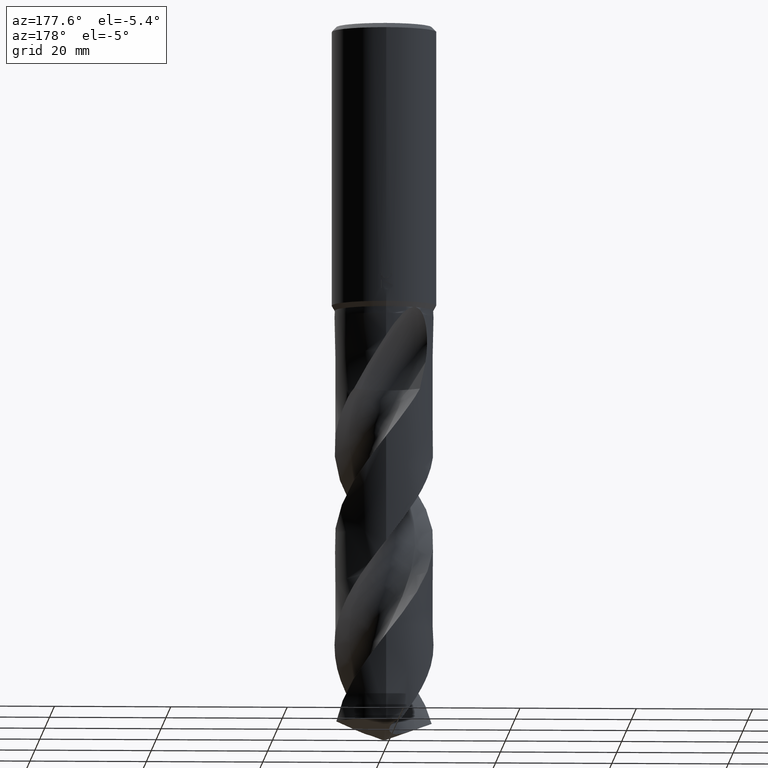
[diagram: clean part render]
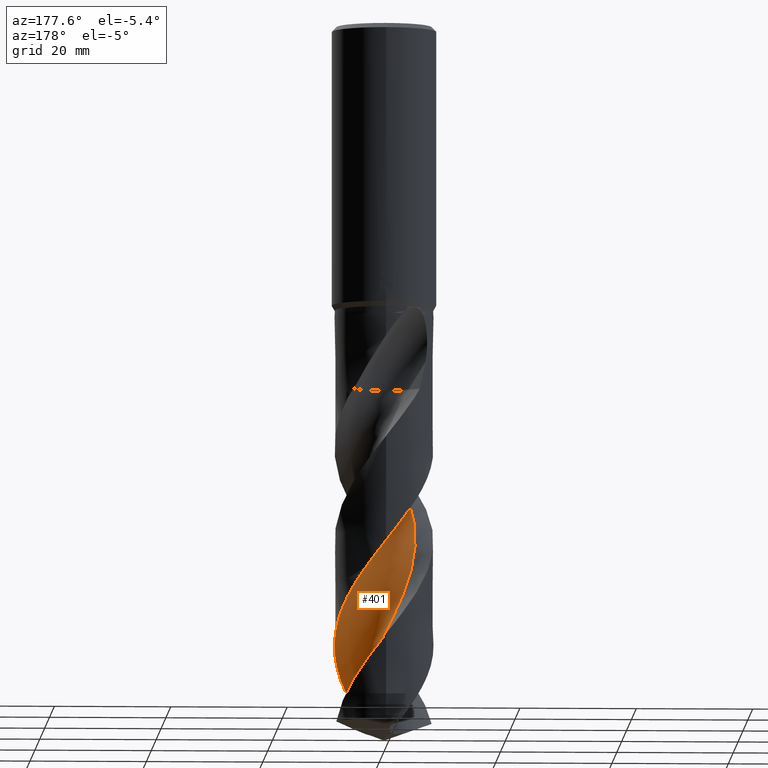
[diagram: same view with one face highlighted and labeled with its STEP entity id]
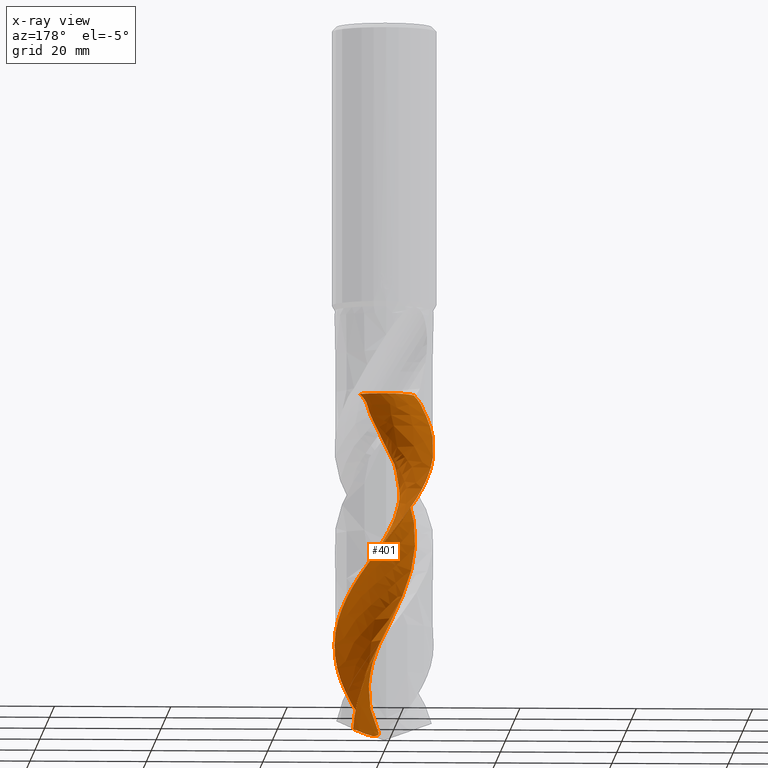
[diagram: x-ray of the same camera — body ghosted, the highlighted face saturated]
A machine part, auxiliary view. The second image highlights one B-rep face of the part: STEP entity #401.
The next image is the same camera in x-ray: the body ghosted, the highlighted face saturated — about 0% of this face is hidden behind the body in this view.
In plain terms, the highlighted face is a freeform B-spline surface patch.
Its self-contained STEP definition (entity closure, byte-faithful):
#303=EDGE_CURVE('',#535,#459,#812,.T.);
#371=EDGE_CURVE('',#585,#535,#889,.T.);
#401=ADVANCED_FACE('',(#922),#923,.F.);
#459=VERTEX_POINT('',#985);
#517=EDGE_CURVE('',#459,#745,#1051,.T.);
#525=VERTEX_POINT('',#1060);
#535=VERTEX_POINT('',#1071);
#585=VERTEX_POINT('',#1124);
#595=EDGE_CURVE('',#629,#525,#1135,.T.);
#629=VERTEX_POINT('',#1172);
#643=EDGE_CURVE('',#525,#585,#1187,.T.);
#745=VERTEX_POINT('',#1297);
#753=EDGE_CURVE('',#745,#629,#1305,.T.);
#812=B_SPLINE_CURVE_WITH_KNOTS('',3,(#2532,#2533,#2534,#2535,#2536,#2537,#2538,#2539,#2540,#2541,#2542,#2543,#2544,#2545,#2546,#2547,#2548,#2549,#2550,#2551,#2552,#2553,#2554,#2555,#2556,#2557,#2558,#2559,#2560,#2561,#2562,#2563,#2564,#2565,#2566,#2567,#2568,#2569,#2570,#2571,#2572,#2573,#2574,#2575,#2576,#2577,#2578,#2579,#2580,#2581,#2582,#2583,#2584,#2585,#2586,#2587,#2588,#2589,#2590,#2591,#2592,#2593,#2594,#2595,#2596,#2597,#2598,#2599,#2600,#2601,#2602,#2603,#2604,#2605,#2606,#2607,#2608,#2609),.UNSPECIFIED.,.F.,.F.,(4,2,2,2,2,2,2,2,2,2,2,2,2,2,2,2,2,2,2,2,2,2,2,2,2,2,2,2,2,2,2,2,2,2,2,2,2,2,4),(0.0,0.522563173765693,1.06852787144432,3.34920803569918,4.92623591202756,6.26376894527645,9.73321756467634,11.0126163139356,14.2925667231069,15.854647884131,18.8948826092623,21.6782707077687,23.2905712357289,26.597154616735,29.2462148435049,30.2440652652966,33.3355472262883,36.1004614177827,38.9164952089854,39.4585055175222,42.6761939699768,45.7998130510591,48.5512001440996,48.8223862354826,53.3090894083769,53.8513011431229,58.2104804619845,58.3876437263313,62.6964514163737,63.8166452772653,65.8150686431684,67.6747637446207,68.7418822960407,69.6574210277493,70.4989231501578,70.8960297154981,71.4592013883667,72.7020427435539,73.5316494986147),.UNSPECIFIED.);
#889=B_SPLINE_CURVE_WITH_KNOTS('',3,(#2892,#2893,#2894,#2895,#2896,#2897,#2898,#2899,#2900,#2901,#2902,#2903,#2904,#2905,#2906,#2907,#2908,#2909,#2910,#2911,#2912,#2913,#2914,#2915,#2916,#2917,#2918,#2919,#2920,#2921,#2922,#2923,#2924,#2925,#2926,#2927,#2928,#2929,#2930,#2931,#2932,#2933,#2934,#2935,#2936,#2937,#2938,#2939,#2940,#2941,#2942,#2943,#2944,#2945,#2946,#2947,#2948,#2949,#2950,#2951,#2952,#2953,#2954,#2955,#2956,#2957,#2958,#2959,#2960,#2961,#2962,#2963,#2964,#2965,#2966,#2967,#2968,#2969),.UNSPECIFIED.,.F.,.F.,(4,2,2,2,2,2,2,2,2,2,2,2,2,2,2,2,2,2,2,2,2,2,2,2,2,2,2,2,2,2,2,2,2,2,2,2,2,2,4),(0.0,0.522563173765693,1.06852787144432,3.34920803569918,4.92623591202756,6.26376894527645,9.73321756467634,11.0126163139356,14.2925667231069,15.854647884131,18.8948826092623,21.6782707077687,23.2905712357289,26.597154616735,29.2462148435049,30.2440652652966,33.3355472262883,36.1004614177827,38.9164952089854,39.4585055175222,42.6761939699768,45.7998130510591,48.5512001440996,48.8223862354826,53.3090894083769,53.8513011431229,58.2104804619845,58.3876437263313,62.6964514163737,63.8166452772653,65.8150686431684,67.6747637446207,68.7418822960407,69.6574210277493,70.4989231501578,70.8960297154981,71.4592013883667,72.7020427435539,73.5316494986147),.UNSPECIFIED.);
#922=FACE_OUTER_BOUND('',#3106,.T.);
#923=B_SPLINE_SURFACE_WITH_KNOTS('',3,3,((#3107,#3108,#3109,#3110,#3111,#3112,#3113,#3114,#3115,#3116,#3117,#3118,#3119,#3120,#3121,#3122,#3123,#3124,#3125,#3126,#3127,#3128,#3129,#3130,#3131,#3132,#3133,#3134,#3135,#3136,#3137,#3138,#3139,#3140,#3141,#3142,#3143,#3144,#3145,#3146,#3147,#3148,#3149,#3150,#3151,#3152,#3153,#3154,#3155,#3156,#3157,#3158,#3159,#3160,#3161,#3162,#3163,#3164),(#3165,#3166,#3167,#3168,#3169,#3170,#3171,#3172,#3173,#3174,#3175,#3176,#3177,#3178,#3179,#3180,#3181,#3182,#3183,#3184,#3185,#3186,#3187,#3188,#3189,#3190,#3191,#3192,#3193,#3194,#3195,#3196,#3197,#3198,#3199,#3200,#3201,#3202,#3203,#3204,#3205,#3206,#3207,#3208,#3209,#3210,#3211,#3212,#3213,#3214,#3215,#3216,#3217,#3218,#3219,#3220,#3221,#3222),(#3223,#3224,#3225,#3226,#3227,#3228,#3229,#3230,#3231,#3232,#3233,#3234,#3235,#3236,#3237,#3238,#3239,#3240,#3241,#3242,#3243,#3244,#3245,#3246,#3247,#3248,#3249,#3250,#3251,#3252,#3253,#3254,#3255,#3256,#3257,#3258,#3259,#3260,#3261,#3262,#3263,#3264,#3265,#3266,#3267,#3268,#3269,#3270,#3271,#3272,#3273,#3274,#3275,#3276,#3277,#3278,#3279,#3280),(#3281,#3282,#3283,#3284,#3285,#3286,#3287,#3288,#3289,#3290,#3291,#3292,#3293,#3294,#3295,#3296,#3297,#3298,#3299,#3300,#3301,#3302,#3303,#3304,#3305,#3306,#3307,#3308,#3309,#3310,#3311,#3312,#3313,#3314,#3315,#3316,#3317,#3318,#3319,#3320,#3321,#3322,#3323,#3324,#3325,#3326,#3327,#3328,#3329,#3330,#3331,#3332,#3333,#3334,#3335,#3336,#3337,#3338),(#3339,#3340,#3341,#3342,#3343,#3344,#3345,#3346,#3347,#3348,#3349,#3350,#3351,#3352,#3353,#3354,#3355,#3356,#3357,#3358,#3359,#3360,#3361,#3362,#3363,#3364,#3365,#3366,#3367,#3368,#3369,#3370,#3371,#3372,#3373,#3374,#3375,#3376,#3377,#3378,#3379,#3380,#3381,#3382,#3383,#3384,#3385,#3386,#3387,#3388,#3389,#3390,#3391,#3392,#3393,#3394,#3395,#3396),(#3397,#3398,#3399,#3400,#3401,#3402,#3403,#3404,#3405,#3406,#3407,#3408,#3409,#3410,#3411,#3412,#3413,#3414,#3415,#3416,#3417,#3418,#3419,#3420,#3421,#3422,#3423,#3424,#3425,#3426,#3427,#3428,#3429,#3430,#3431,#3432,#3433,#3434,#3435,#3436,#3437,#3438,#3439,#3440,#3441,#3442,#3443,#3444,#3445,#3446,#3447,#3448,#3449,#3450,#3451,#3452,#3453,#3454),(#3455,#3456,#3457,#3458,#3459,#3460,#3461,#3462,#3463,#3464,#3465,#3466,#3467,#3468,#3469,#3470,#3471,#3472,#3473,#3474,#3475,#3476,#3477,#3478,#3479,#3480,#3481,#3482,#3483,#3484,#3485,#3486,#3487,#3488,#3489,#3490,#3491,#3492,#3493,#3494,#3495,#3496,#3497,#3498,#3499,#3500,#3501,#3502,#3503,#3504,#3505,#3506,#3507,#3508,#3509,#3510,#3511,#3512),(#3513,#3514,#3515,#3516,#3517,#3518,#3519,#3520,#3521,#3522,#3523,#3524,#3525,#3526,#3527,#3528,#3529,#3530,#3531,#3532,#3533,#3534,#3535,#3536,#3537,#3538,#3539,#3540,#3541,#3542,#3543,#3544,#3545,#3546,#3547,#3548,#3549,#3550,#3551,#3552,#3553,#3554,#3555,#3556,#3557,#3558,#3559,#3560,#3561,#3562,#3563,#3564,#3565,#3566,#3567,#3568,#3569,#3570),(#3571,#3572,#3573,#3574,#3575,#3576,#3577,#3578,#3579,#3580,#3581,#3582,#3583,#3584,#3585,#3586,#3587,#3588,#3589,#3590,#3591,#3592,#3593,#3594,#3595,#3596,#3597,#3598,#3599,#3600,#3601,#3602,#3603,#3604,#3605,#3606,#3607,#3608,#3609,#3610,#3611,#3612,#3613,#3614,#3615,#3616,#3617,#3618,#3619,#3620,#3621,#3622,#3623,#3624,#3625,#3626,#3627,#3628),(#3629,#3630,#3631,#3632,#3633,#3634,#3635,#3636,#3637,#3638,#3639,#3640,#3641,#3642,#3643,#3644,#3645,#3646,#3647,#3648,#3649,#3650,#3651,#3652,#3653,#3654,#3655,#3656,#3657,#3658,#3659,#3660,#3661,#3662,#3663,#3664,#3665,#3666,#3667,#3668,#3669,#3670,#3671,#3672,#3673,#3674,#3675,#3676,#3677,#3678,#3679,#3680,#3681,#3682,#3683,#3684,#3685,#3686),(#3687,#3688,#3689,#3690,#3691,#3692,#3693,#3694,#3695,#3696,#3697,#3698,#3699,#3700,#3701,#3702,#3703,#3704,#3705,#3706,#3707,#3708,#3709,#3710,#3711,#3712,#3713,#3714,#3715,#3716,#3717,#3718,#3719,#3720,#3721,#3722,#3723,#3724,#3725,#3726,#3727,#3728,#3729,#3730,#3731,#3732,#3733,#3734,#3735,#3736,#3737,#3738,#3739,#3740,#3741,#3742,#3743,#3744),(#3745,#3746,#3747,#3748,#3749,#3750,#3751,#3752,#3753,#3754,#3755,#3756,#3757,#3758,#3759,#3760,#3761,#3762,#3763,#3764,#3765,#3766,#3767,#3768,#3769,#3770,#3771,#3772,#3773,#3774,#3775,#3776,#3777,#3778,#3779,#3780,#3781,#3782,#3783,#3784,#3785,#3786,#3787,#3788,#3789,#3790,#3791,#3792,#3793,#3794,#3795,#3796,#3797,#3798,#3799,#3800,#3801,#3802),(#3803,#3804,#3805,#3806,#3807,#3808,#3809,#3810,#3811,#3812,#3813,#3814,#3815,#3816,#3817,#3818,#3819,#3820,#3821,#3822,#3823,#3824,#3825,#3826,#3827,#3828,#3829,#3830,#3831,#3832,#3833,#3834,#3835,#3836,#3837,#3838,#3839,#3840,#3841,#3842,#3843,#3844,#3845,#3846,#3847,#3848,#3849,#3850,#3851,#3852,#3853,#3854,#3855,#3856,#3857,#3858,#3859,#3860),(#3861,#3862,#3863,#3864,#3865,#3866,#3867,#3868,#3869,#3870,#3871,#3872,#3873,#3874,#3875,#3876,#3877,#3878,#3879,#3880,#3881,#3882,#3883,#3884,#3885,#3886,#3887,#3888,#3889,#3890,#3891,#3892,#3893,#3894,#3895,#3896,#3897,#3898,#3899,#3900,#3901,#3902,#3903,#3904,#3905,#3906,#3907,#3908,#3909,#3910,#3911,#3912,#3913,#3914,#3915,#3916,#3917,#3918)),.UNSPECIFIED.,.F.,.F.,.F.,(4,1,1,1,1,1,1,1,1,1,1,4),(4,1,2,2,2,2,2,2,1,2,1,2,1,2,1,2,1,2,1,2,1,2,1,2,1,2,1,2,1,2,1,2,1,2,2,4),(-3.04248138003313E-017,0.294525425188328,0.589050850376657,0.883576275564985,1.17810170075331,1.47262712594164,1.76715255112997,2.0616779763183,2.35620340150663,2.65072882669496,2.94525425188329,3.14160453534217),(0.0,1.39264682957676,2.78529365915353,4.17794048873029,5.57058731830706,6.96323414788382,8.35588097746059,11.1411746366141,13.9264682957676,16.7117619549212,19.4970556140747,22.2823492732282,25.0676429323818,27.8529365915353,30.6382302506888,33.4235239098423,36.2088175689959,38.9941112281494,41.7794048873029,44.5646985464565,47.34999220561,50.1352858647635,52.920579523917,55.7058731830706,58.4911668422241,61.2764605013776,64.0617541605312,66.8470478196847,69.6323414788382,72.4176351379918,75.2029287971453,77.9882224562988,80.7735161154523,83.5588097746059,86.3441034337594,89.1293970929129),.UNSPECIFIED.);
#985=CARTESIAN_POINT('',(-5.41628966392335,-6.55075712748483,-62.857));
#1051=CIRCLE('',#4345,5.66666667);
#1060=CARTESIAN_POINT('',(5.33816353239491,0.455268096738975,-121.050014092925));
#1071=CARTESIAN_POINT('',(1.45768554153083E-014,8.49995609925248,-89.216885372482));
#1124=CARTESIAN_POINT('',(2.64912910063122,-8.07664008162979,-119.906253008737));
#1135=B_SPLINE_CURVE_WITH_KNOTS('',3,(#4468,#4469,#4470,#4471,#4472,#4473,#4474,#4475,#4476,#4477,#4478,#4479,#4480,#4481,#4482,#4483,#4484,#4485,#4486,#4487,#4488,#4489,#4490,#4491,#4492,#4493,#4494,#4495,#4496,#4497,#4498,#4499,#4500,#4501,#4502,#4503,#4504,#4505,#4506,#4507,#4508,#4509,#4510,#4511,#4512,#4513,#4514,#4515,#4516,#4517,#4518,#4519,#4520,#4521,#4522,#4523,#4524,#4525),.UNSPECIFIED.,.F.,.F.,(4,1,2,2,2,2,2,2,1,2,1,2,1,2,1,2,1,2,1,2,1,2,1,2,1,2,1,2,1,2,1,2,1,2,2,4),(0.0,1.39264682957676,2.78529365915353,4.17794048873029,5.57058731830706,6.96323414788382,8.35588097746059,11.1411746366141,13.9264682957676,16.7117619549212,19.4970556140747,22.2823492732282,25.0676429323818,27.8529365915353,30.6382302506888,33.4235239098423,36.2088175689959,38.9941112281494,41.7794048873029,44.5646985464565,47.34999220561,50.1352858647635,52.920579523917,55.7058731830706,58.4911668422241,61.2764605013776,64.0617541605312,66.8470478196847,69.6323414788382,72.4176351379918,75.2029287971453,77.9882224562988,80.7735161154523,83.5588097746059,86.3441034337594,89.1293970929129),.UNSPECIFIED.);
#1172=CARTESIAN_POINT('',(4.00693842901008,-4.20972824098991,-62.857));
#1187=B_SPLINE_CURVE_WITH_KNOTS('',3,(#4638,#4639,#4640,#4641,#4642,#4643,#4644,#4645,#4646,#4647,#4648,#4649,#4650,#4651,#4652,#4653,#4654,#4655,#4656,#4657),.UNSPECIFIED.,.F.,.F.,(4,2,2,2,2,2,2,2,2,4),(0.0,3.447902390667,5.83019455378895,8.75128982087182,12.1896604751633,15.9994773508591,20.3959940568002,25.4886712459086,30.0579134649796,34.6524532493433),.UNSPECIFIED.);
#1297=CARTESIAN_POINT('',(0.616854885912335,-2.58365326561058,-62.857));
#1305=CIRCLE('',#5426,5.66666667);
#2532=CARTESIAN_POINT('',(2.64912910063121,-8.0766400816298,-119.906253008737));
#2533=CARTESIAN_POINT('',(2.75098393759203,-8.04323159996719,-119.768954687779));
#2534=CARTESIAN_POINT('',(2.85219617614923,-8.00789985668937,-119.631692707535));
#2535=CARTESIAN_POINT('',(3.05772794157049,-7.93176072954062,-119.350942803885));
#2536=CARTESIAN_POINT('',(3.16198306629713,-7.89077964541316,-119.207375955885));
#2537=CARTESIAN_POINT('',(3.69763170476251,-7.66789489262512,-118.464714375239));
#2538=CARTESIAN_POINT('',(4.11479116041626,-7.45243636111605,-117.868787992535));
#2539=CARTESIAN_POINT('',(4.78767827295297,-7.03089083955277,-116.857214006794));
#2540=CARTESIAN_POINT('',(5.05228281222242,-6.84318206998036,-116.444428298932));
#2541=CARTESIAN_POINT('',(5.51970598669576,-6.4697851248192,-115.678889054505));
#2542=CARTESIAN_POINT('',(5.72543562735683,-6.28843590937243,-115.326338353962));
#2543=CARTESIAN_POINT('',(6.43218045082562,-5.60201361475981,-114.063925146229));
#2544=CARTESIAN_POINT('',(6.8781594144636,-5.04449951513085,-113.163503107259));
#2545=CARTESIAN_POINT('',(7.38658965708235,-4.21389804947806,-111.917548190763));
#2546=CARTESIAN_POINT('',(7.51297846529282,-3.98417708818616,-111.580889678707));
#2547=CARTESIAN_POINT('',(7.92498888747934,-3.14578136039116,-110.384777385938));
#2548=CARTESIAN_POINT('',(8.14888139300285,-2.50952355768237,-109.533308339802));
#2549=CARTESIAN_POINT('',(8.36532517773831,-1.54065700596246,-108.264220801238));
#2550=CARTESIAN_POINT('',(8.41734508244911,-1.22483393199911,-107.853307497329));
#2551=CARTESIAN_POINT('',(8.51784822300015,-0.288281446076393,-106.647171829965));
#2552=CARTESIAN_POINT('',(8.51614861730795,0.336093254698121,-105.857670777251));
#2553=CARTESIAN_POINT('',(8.38205885374967,1.52183932315258,-104.333247502689));
#2554=CARTESIAN_POINT('',(8.26113900637088,2.08060004996286,-103.601702385069));
#2555=CARTESIAN_POINT('',(7.98295873306897,2.93789625700232,-102.451275437434));
#2556=CARTESIAN_POINT('',(7.86266566880863,3.24612959231397,-102.030387632079));
#2557=CARTESIAN_POINT('',(7.44181096386992,4.16277689570681,-100.743158849098));
#2558=CARTESIAN_POINT('',(7.08636703099604,4.74264351336634,-99.8746091991749));
#2559=CARTESIAN_POINT('',(6.32854882210871,5.70035356788034,-98.3161379449366));
#2560=CARTESIAN_POINT('',(5.95186928786726,6.0924646289315,-97.6272565589455));
#2561=CARTESIAN_POINT('',(5.38638556263966,6.57859542487709,-96.671401751321));
#2562=CARTESIAN_POINT('',(5.22694933434147,6.70598541612625,-96.4093267663912));
#2563=CARTESIAN_POINT('',(4.55382452714012,7.20509598853579,-95.336457226253));
#2564=CARTESIAN_POINT('',(4.00420913159156,7.52447685403036,-94.5330004675083));
#2565=CARTESIAN_POINT('',(2.90478385745131,8.00831940255177,-92.9980825475109));
#2566=CARTESIAN_POINT('',(2.36410668880177,8.18428762526545,-92.2705388292622));
#2567=CARTESIAN_POINT('',(1.2445571093004,8.4282045541957,-90.8081457592181));
#2568=CARTESIAN_POINT('',(0.669408795424937,8.49313633870847,-90.0754871151347));
#2569=CARTESIAN_POINT('',(-0.0178515618868574,8.50066121093801,-89.1940387035066));
#2570=CARTESIAN_POINT('',(-0.128700775799963,8.4997068816113,-89.0516388482566));
#2571=CARTESIAN_POINT('',(-0.898676471842592,8.47798313325479,-88.0640430956754));
#2572=CARTESIAN_POINT('',(-1.55384072915769,8.38279568796939,-87.2274458414239));
#2573=CARTESIAN_POINT('',(-2.81181112344267,8.04700033415922,-85.5648636900374));
#2574=CARTESIAN_POINT('',(-3.41065227365796,7.81206401554192,-84.7428333255196));
#2575=CARTESIAN_POINT('',(-4.47722902075621,7.2472746311567,-83.2028829207403));
#2576=CARTESIAN_POINT('',(-4.94826359237976,6.93404926416158,-82.4865091750369));
#2577=CARTESIAN_POINT('',(-5.42707272093589,6.5420971035327,-81.6926579946691));
#2578=CARTESIAN_POINT('',(-5.46962941551944,6.50655838804929,-81.621445934763));
#2579=CARTESIAN_POINT('',(-6.21073343886888,5.87525687992692,-80.372195741408));
#2580=CARTESIAN_POINT('',(-6.80814242699897,5.17106905421937,-79.2166099893045));
#2581=CARTESIAN_POINT('',(-7.33866308247959,4.29013936672446,-77.8972244836123));
#2582=CARTESIAN_POINT('',(-7.39397030060091,4.19410487545515,-77.7548330744827));
#2583=CARTESIAN_POINT('',(-7.87790944222036,3.31435238520003,-76.4673408092359));
#2584=CARTESIAN_POINT('',(-8.1821057069836,2.46950134732456,-75.3433355852327));
#2585=CARTESIAN_POINT('',(-8.35613893355806,1.55728766377542,-74.1525478446468));
#2586=CARTESIAN_POINT('',(-8.3627021470603,1.52164849092407,-74.1060510520136));
#2587=CARTESIAN_POINT('',(-8.52322818577031,0.617533131150302,-72.9284503470329));
#2588=CARTESIAN_POINT('',(-8.54133839471708,-0.269608539391488,-71.8128314635997));
#2589=CARTESIAN_POINT('',(-8.39175418545861,-1.37108093923388,-70.3900889233398));
#2590=CARTESIAN_POINT('',(-8.35172332767457,-1.59688511935425,-70.095950786162));
#2591=CARTESIAN_POINT('',(-8.21503200842603,-2.22018496449671,-69.278401390267));
#2592=CARTESIAN_POINT('',(-8.09918032957793,-2.61062894863148,-68.755988689088));
#2593=CARTESIAN_POINT('',(-7.82479752072521,-3.34106767705951,-67.7618509461966));
#2594=CARTESIAN_POINT('',(-7.67218446827076,-3.67783137410969,-67.3042535842625));
#2595=CARTESIAN_POINT('',(-7.39438009537402,-4.19737866926478,-66.5622053840109));
#2596=CARTESIAN_POINT('',(-7.28582012372642,-4.38312904805801,-66.2896863962693));
#2597=CARTESIAN_POINT('',(-7.07112920884746,-4.72037020772649,-65.7569434688735));
#2598=CARTESIAN_POINT('',(-6.97151054571912,-4.86542578050415,-65.5108887177227));
#2599=CARTESIAN_POINT('',(-6.7908878187767,-5.11411564484639,-65.08424026607));
#2600=CARTESIAN_POINT('',(-6.64489708422403,-5.30201583184537,-64.7491526388753));
#2601=CARTESIAN_POINT('',(-6.52156787297093,-5.45175872014934,-64.4913063763406));
#2602=CARTESIAN_POINT('',(-6.4807212287408,-5.5002809966868,-64.4096743157146));
#2603=CARTESIAN_POINT('',(-6.37854935220333,-5.61882349879718,-64.2145223456821));
#2604=CARTESIAN_POINT('',(-6.31595274357627,-5.68917560378096,-64.1022290948111));
#2605=CARTESIAN_POINT('',(-6.1059783426664,-5.91702013143584,-63.7482515750393));
#2606=CARTESIAN_POINT('',(-5.94862593987465,-6.07594955329417,-63.5159486166895));
#2607=CARTESIAN_POINT('',(-5.66259310841172,-6.34097978878107,-63.1428341261082));
#2608=CARTESIAN_POINT('',(-5.54238623063757,-6.44649836742684,-62.9980802153434));
#2609=CARTESIAN_POINT('',(-5.41628966392336,-6.55075712748483,-62.857));
#2892=CARTESIAN_POINT('',(2.64912910063121,-8.0766400816298,-119.906253008737));
#2893=CARTESIAN_POINT('',(2.75098393759203,-8.04323159996719,-119.768954687779));
#2894=CARTESIAN_POINT('',(2.85219617614923,-8.00789985668937,-119.631692707535));
#2895=CARTESIAN_POINT('',(3.05772794157049,-7.93176072954062,-119.350942803885));
#2896=CARTESIAN_POINT('',(3.16198306629713,-7.89077964541316,-119.207375955885));
#2897=CARTESIAN_POINT('',(3.69763170476251,-7.66789489262512,-118.464714375239));
#2898=CARTESIAN_POINT('',(4.11479116041626,-7.45243636111605,-117.868787992535));
#2899=CARTESIAN_POINT('',(4.78767827295297,-7.03089083955277,-116.857214006794));
#2900=CARTESIAN_POINT('',(5.05228281222242,-6.84318206998036,-116.444428298932));
#2901=CARTESIAN_POINT('',(5.51970598669576,-6.4697851248192,-115.678889054505));
#2902=CARTESIAN_POINT('',(5.72543562735683,-6.28843590937243,-115.326338353962));
#2903=CARTESIAN_POINT('',(6.43218045082562,-5.60201361475981,-114.063925146229));
#2904=CARTESIAN_POINT('',(6.8781594144636,-5.04449951513085,-113.163503107259));
#2905=CARTESIAN_POINT('',(7.38658965708235,-4.21389804947806,-111.917548190763));
#2906=CARTESIAN_POINT('',(7.51297846529282,-3.98417708818616,-111.580889678707));
#2907=CARTESIAN_POINT('',(7.92498888747934,-3.14578136039116,-110.384777385938));
#2908=CARTESIAN_POINT('',(8.14888139300285,-2.50952355768237,-109.533308339802));
#2909=CARTESIAN_POINT('',(8.36532517773831,-1.54065700596246,-108.264220801238));
#2910=CARTESIAN_POINT('',(8.41734508244911,-1.22483393199911,-107.853307497329));
#2911=CARTESIAN_POINT('',(8.51784822300015,-0.288281446076393,-106.647171829965));
#2912=CARTESIAN_POINT('',(8.51614861730795,0.336093254698121,-105.857670777251));
#2913=CARTESIAN_POINT('',(8.38205885374967,1.52183932315258,-104.333247502689));
#2914=CARTESIAN_POINT('',(8.26113900637088,2.08060004996286,-103.601702385069));
#2915=CARTESIAN_POINT('',(7.98295873306897,2.93789625700232,-102.451275437434));
#2916=CARTESIAN_POINT('',(7.86266566880863,3.24612959231397,-102.030387632079));
#2917=CARTESIAN_POINT('',(7.44181096386992,4.16277689570681,-100.743158849098));
#2918=CARTESIAN_POINT('',(7.08636703099604,4.74264351336634,-99.8746091991749));
#2919=CARTESIAN_POINT('',(6.32854882210871,5.70035356788034,-98.3161379449366));
#2920=CARTESIAN_POINT('',(5.95186928786726,6.0924646289315,-97.6272565589455));
#2921=CARTESIAN_POINT('',(5.38638556263966,6.57859542487709,-96.671401751321));
#2922=CARTESIAN_POINT('',(5.22694933434147,6.70598541612625,-96.4093267663912));
#2923=CARTESIAN_POINT('',(4.55382452714012,7.20509598853579,-95.336457226253));
#2924=CARTESIAN_POINT('',(4.00420913159156,7.52447685403036,-94.5330004675083));
#2925=CARTESIAN_POINT('',(2.90478385745131,8.00831940255177,-92.9980825475109));
#2926=CARTESIAN_POINT('',(2.36410668880177,8.18428762526545,-92.2705388292622));
#2927=CARTESIAN_POINT('',(1.2445571093004,8.4282045541957,-90.8081457592181));
#2928=CARTESIAN_POINT('',(0.669408795424937,8.49313633870847,-90.0754871151347));
#2929=CARTESIAN_POINT('',(-0.0178515618868574,8.50066121093801,-89.1940387035066));
#2930=CARTESIAN_POINT('',(-0.128700775799963,8.4997068816113,-89.0516388482566));
#2931=CARTESIAN_POINT('',(-0.898676471842592,8.47798313325479,-88.0640430956754));
#2932=CARTESIAN_POINT('',(-1.55384072915769,8.38279568796939,-87.2274458414239));
#2933=CARTESIAN_POINT('',(-2.81181112344267,8.04700033415922,-85.5648636900374));
#2934=CARTESIAN_POINT('',(-3.41065227365796,7.81206401554192,-84.7428333255196));
#2935=CARTESIAN_POINT('',(-4.47722902075621,7.2472746311567,-83.2028829207403));
#2936=CARTESIAN_POINT('',(-4.94826359237976,6.93404926416158,-82.4865091750369));
#2937=CARTESIAN_POINT('',(-5.42707272093589,6.5420971035327,-81.6926579946691));
#2938=CARTESIAN_POINT('',(-5.46962941551944,6.50655838804929,-81.621445934763));
#2939=CARTESIAN_POINT('',(-6.21073343886888,5.87525687992692,-80.372195741408));
#2940=CARTESIAN_POINT('',(-6.80814242699897,5.17106905421937,-79.2166099893045));
#2941=CARTESIAN_POINT('',(-7.33866308247959,4.29013936672446,-77.8972244836123));
#2942=CARTESIAN_POINT('',(-7.39397030060091,4.19410487545515,-77.7548330744827));
#2943=CARTESIAN_POINT('',(-7.87790944222036,3.31435238520003,-76.4673408092359));
#2944=CARTESIAN_POINT('',(-8.1821057069836,2.46950134732456,-75.3433355852327));
#2945=CARTESIAN_POINT('',(-8.35613893355806,1.55728766377542,-74.1525478446468));
#2946=CARTESIAN_POINT('',(-8.3627021470603,1.52164849092407,-74.1060510520136));
#2947=CARTESIAN_POINT('',(-8.52322818577031,0.617533131150302,-72.9284503470329));
#2948=CARTESIAN_POINT('',(-8.54133839471708,-0.269608539391488,-71.8128314635997));
#2949=CARTESIAN_POINT('',(-8.39175418545861,-1.37108093923388,-70.3900889233398));
#2950=CARTESIAN_POINT('',(-8.35172332767457,-1.59688511935425,-70.095950786162));
#2951=CARTESIAN_POINT('',(-8.21503200842603,-2.22018496449671,-69.278401390267));
#2952=CARTESIAN_POINT('',(-8.09918032957793,-2.61062894863148,-68.755988689088));
#2953=CARTESIAN_POINT('',(-7.82479752072521,-3.34106767705951,-67.7618509461966));
#2954=CARTESIAN_POINT('',(-7.67218446827076,-3.67783137410969,-67.3042535842625));
#2955=CARTESIAN_POINT('',(-7.39438009537402,-4.19737866926478,-66.5622053840109));
#2956=CARTESIAN_POINT('',(-7.28582012372642,-4.38312904805801,-66.2896863962693));
#2957=CARTESIAN_POINT('',(-7.07112920884746,-4.72037020772649,-65.7569434688735));
#2958=CARTESIAN_POINT('',(-6.97151054571912,-4.86542578050415,-65.5108887177227));
#2959=CARTESIAN_POINT('',(-6.7908878187767,-5.11411564484639,-65.08424026607));
#2960=CARTESIAN_POINT('',(-6.64489708422403,-5.30201583184537,-64.7491526388753));
#2961=CARTESIAN_POINT('',(-6.52156787297093,-5.45175872014934,-64.4913063763406));
#2962=CARTESIAN_POINT('',(-6.4807212287408,-5.5002809966868,-64.4096743157146));
#2963=CARTESIAN_POINT('',(-6.37854935220333,-5.61882349879718,-64.2145223456821));
#2964=CARTESIAN_POINT('',(-6.31595274357627,-5.68917560378096,-64.1022290948111));
#2965=CARTESIAN_POINT('',(-6.1059783426664,-5.91702013143584,-63.7482515750393));
#2966=CARTESIAN_POINT('',(-5.94862593987465,-6.07594955329417,-63.5159486166895));
#2967=CARTESIAN_POINT('',(-5.66259310841172,-6.34097978878107,-63.1428341261082));
#2968=CARTESIAN_POINT('',(-5.54238623063757,-6.44649836742684,-62.9980802153434));
#2969=CARTESIAN_POINT('',(-5.41628966392336,-6.55075712748483,-62.857));
#3106=EDGE_LOOP('',(#5726,#5727,#5728,#5729,#5730,#5731));
#3107=CARTESIAN_POINT('',(-4.00693842901008,-12.2236050990101,-62.857));
#3108=CARTESIAN_POINT('',(-4.3492571526129,-12.2065178512562,-63.1697950603835));
#3109=CARTESIAN_POINT('',(-5.04130307572369,-12.1054389556417,-63.7998336269962));
#3110=CARTESIAN_POINT('',(-5.73207183959033,-11.833519961773,-64.4327199103759));
#3111=CARTESIAN_POINT('',(-6.40348032896333,-11.4582965794423,-65.0587497521629));
#3112=CARTESIAN_POINT('',(-6.72961308562496,-11.2519085950316,-65.3705254423279));
#3113=CARTESIAN_POINT('',(-7.35980435620416,-10.8030970717737,-65.9914961498203));
#3114=CARTESIAN_POINT('',(-7.66569407445733,-10.5749202973328,-66.3025979833867));
#3115=CARTESIAN_POINT('',(-8.26279511245641,-10.1150870072823,-66.9291782579339));
#3116=CARTESIAN_POINT('',(-8.55223816182611,-9.87560360339221,-67.2430561663799));
#3117=CARTESIAN_POINT('',(-9.11176137421357,-9.37903899253879,-67.8727408206394));
#3118=CARTESIAN_POINT('',(-9.37997613214637,-9.11590700438486,-68.1870525828384));
#3119=CARTESIAN_POINT('',(-10.1441288669647,-8.28255155825039,-69.1269661831532));
#3120=CARTESIAN_POINT('',(-10.6057151114216,-7.68338986422244,-69.7533230745962));
#3121=CARTESIAN_POINT('',(-11.4157389862309,-6.40952524366489,-71.0050754564157));
#3122=CARTESIAN_POINT('',(-12.1188368496533,-5.0700170180268,-72.258005382968));
#3123=CARTESIAN_POINT('',(-12.5817258417292,-3.62995144864001,-73.5122140680209));
#3124=CARTESIAN_POINT('',(-12.9120864440561,-2.15745178832795,-74.7651116821892));
#3125=CARTESIAN_POINT('',(-13.1196805234914,-0.66006684409962,-76.0176931869316));
#3126=CARTESIAN_POINT('',(-13.0683200096631,0.851585919260846,-77.2713054803384));
#3127=CARTESIAN_POINT('',(-12.8791029962437,2.34934158010959,-78.5244635533027));
#3128=CARTESIAN_POINT('',(-12.5658526533506,3.82855820878331,-79.7771473756923));
#3129=CARTESIAN_POINT('',(-12.004632905944,5.23307975064517,-81.0307181542443));
#3130=CARTESIAN_POINT('',(-11.318902643226,6.57785153801442,-82.2838556036811));
#3131=CARTESIAN_POINT('',(-10.5227653971771,7.86318716749281,-83.5365459342687));
#3132=CARTESIAN_POINT('',(-9.51854790746377,8.99417720258166,-84.7901280533058));
#3133=CARTESIAN_POINT('',(-8.41736793521365,10.0266906398954,-86.0432560058446));
#3134=CARTESIAN_POINT('',(-7.23248780602072,10.9658449140399,-87.2959345465594));
#3135=CARTESIAN_POINT('',(-5.9042242294011,11.6892505209352,-88.5495096809877));
#3136=CARTESIAN_POINT('',(-4.51815169831292,12.287146855632,-89.8026370458746));
#3137=CARTESIAN_POINT('',(-3.0849910261939,12.7688280889215,-91.055318115767));
#3138=CARTESIAN_POINT('',(-1.59009501351489,12.9988905789584,-92.3088956460719));
#3139=CARTESIAN_POINT('',(-0.0833761379986463,13.0912535850988,-93.5620220200383));
#3140=CARTESIAN_POINT('',(1.42821936094031,13.0583194038031,-94.8147010766802));
#3141=CARTESIAN_POINT('',(2.91254584663083,12.7677559519954,-96.0682806978276));
#3142=CARTESIAN_POINT('',(4.36129064276208,12.3436540501526,-97.3214137157965));
#3143=CARTESIAN_POINT('',(5.77212591443948,11.8000311180985,-98.5740968050823));
#3144=CARTESIAN_POINT('',(7.06993861470074,11.0233143684204,-99.8276783077311));
#3145=CARTESIAN_POINT('',(8.28899837897053,10.1330533139701,-101.08081419799));
#3146=CARTESIAN_POINT('',(9.4318662657426,9.1432090094587,-102.333497517965));
#3147=CARTESIAN_POINT('',(10.3893691619204,7.97240788435078,-103.587067419834));
#3148=CARTESIAN_POINT('',(11.2342877222408,6.7214951320254,-104.840183343123));
#3149=CARTESIAN_POINT('',(11.9737602189405,5.40272470926788,-106.092861935083));
#3150=CARTESIAN_POINT('',(12.4774349383711,3.97654910811422,-107.346459959533));
#3151=CARTESIAN_POINT('',(12.8479772017533,2.51317943480477,-108.599619966345));
#3152=CARTESIAN_POINT('',(13.0963230265795,1.02177875702664,-109.852304068174));
#3153=CARTESIAN_POINT('',(13.0865887298394,-0.490639862386979,-111.105820932612));
#3154=CARTESIAN_POINT('',(12.9391358742472,-1.99290752552506,-112.358854100421));
#3155=CARTESIAN_POINT('',(12.667061790273,-3.48022374634893,-113.611519408741));
#3156=CARTESIAN_POINT('',(12.1443858233901,-4.89976824044304,-114.865274055588));
#3157=CARTESIAN_POINT('',(11.4951549679461,-6.26290021592804,-116.118690673786));
#3158=CARTESIAN_POINT('',(10.7345345475773,-7.56954407275214,-117.371497001548));
#3159=CARTESIAN_POINT('',(9.76349714270485,-8.72829273417066,-118.624853159038));
#3160=CARTESIAN_POINT('',(8.69380055796868,-9.79193541850764,-119.877564606165));
#3161=CARTESIAN_POINT('',(8.11377269456064,-10.2776771900939,-120.503998640462));
#3162=CARTESIAN_POINT('',(6.87412836220965,-11.1379319518561,-121.756614974004));
#3163=CARTESIAN_POINT('',(6.2234248392517,-11.5174535912743,-122.381971411407));
#3164=CARTESIAN_POINT('',(5.54912596251399,-11.8440391896735,-123.008179496335));
#3165=CARTESIAN_POINT('',(-4.40030284458491,-11.8302060193236,-62.8570000000002));
#3166=CARTESIAN_POINT('',(-4.74285615166326,-11.8133533348062,-63.1698014195134));
#3167=CARTESIAN_POINT('',(-5.42882607637953,-11.7060300782138,-63.8002125261673));
#3168=CARTESIAN_POINT('',(-6.09931165717422,-11.4152136964699,-64.4337005372769));
#3169=CARTESIAN_POINT('',(-6.74188615267096,-11.0163387720985,-65.0596536930606));
#3170=CARTESIAN_POINT('',(-7.0528012710765,-10.7986831848547,-65.3712799900375));
#3171=CARTESIAN_POINT('',(-7.65110002905253,-10.3287437427851,-65.9916732067925));
#3172=CARTESIAN_POINT('',(-7.94197989534183,-10.0917901518547,-66.3025457043783));
#3173=CARTESIAN_POINT('',(-8.51118688440025,-9.61704081283915,-66.9291260760733));
#3174=CARTESIAN_POINT('',(-8.78676124556058,-9.3709024895748,-67.2430666023905));
#3175=CARTESIAN_POINT('',(-9.31869692634215,-8.86241364036327,-67.8730768473259));
#3176=CARTESIAN_POINT('',(-9.57238691956358,-8.59366632131443,-68.1874957677734));
#3177=CARTESIAN_POINT('',(-10.290773253371,-7.74493692840257,-69.1274160591393));
#3178=CARTESIAN_POINT('',(-10.7210568199721,-7.13818733756898,-69.7537513715555));
#3179=CARTESIAN_POINT('',(-11.4669681035617,-5.85461539025204,-71.0053602823432));
#3180=CARTESIAN_POINT('',(-12.1060445086322,-4.51109934439715,-72.258269312633));
#3181=CARTESIAN_POINT('',(-12.5051110168094,-3.07797756707775,-73.5125904785041));
#3182=CARTESIAN_POINT('',(-12.7720071976881,-1.61807937016752,-74.7654639028833));
#3183=CARTESIAN_POINT('',(-12.9181642740908,-0.138601821029716,-76.0179882573429));
#3184=CARTESIAN_POINT('',(-12.8092214020524,1.34495955710072,-77.2716508719679));
#3185=CARTESIAN_POINT('',(-12.5644453975229,2.80927635607493,-78.5248118593646));
#3186=CARTESIAN_POINT('',(-12.1993866608159,4.25074657447861,-79.7774492233953));
#3187=CARTESIAN_POINT('',(-11.5935270547577,5.60929801923391,-81.0310659846732));
#3188=CARTESIAN_POINT('',(-10.8669017352986,6.90380122276315,-82.284204211292));
#3189=CARTESIAN_POINT('',(-10.0348448711046,8.13608317589054,-83.5368487599599));
#3190=CARTESIAN_POINT('',(-9.00422182728293,9.20869329354944,-84.7904780303016));
#3191=CARTESIAN_POINT('',(-7.88161436495029,10.1800411489475,-86.0436057885448));
#3192=CARTESIAN_POINT('',(-6.68093405117919,11.0570992494279,-87.2962373017106));
#3193=CARTESIAN_POINT('',(-5.34762851869798,11.7166297863985,-88.5498588687118));
#3194=CARTESIAN_POINT('',(-3.96214138374515,12.2497205749924,-89.802985974538));
#3195=CARTESIAN_POINT('',(-2.53517515095592,12.6676276115026,-91.0556202820551));
#3196=CARTESIAN_POINT('',(-1.05719871931107,12.8358871502718,-92.3092445079882));
#3197=CARTESIAN_POINT('',(0.426989699171014,12.8674789943515,-93.5623704933636));
#3198=CARTESIAN_POINT('',(1.91112771836748,12.7766481567957,-94.8150025987782));
#3199=CARTESIAN_POINT('',(3.35857694299824,12.4336828701887,-96.0686290833001));
#3200=CARTESIAN_POINT('',(4.76551692611527,11.9600534599067,-97.32176248986));
#3201=CARTESIAN_POINT('',(6.13088756746914,11.3712781812536,-98.5743990162093));
#3202=CARTESIAN_POINT('',(7.37623916501458,10.5577733903803,-99.8280276531851));
#3203=CARTESIAN_POINT('',(8.53917826228067,9.63509928140853,-101.081164061566));
#3204=CARTESIAN_POINT('',(9.62396563337597,8.61819790548933,-102.333800761094));
#3205=CARTESIAN_POINT('',(10.5196417317267,7.43058000841786,-103.587416622679));
#3206=CARTESIAN_POINT('',(11.3007745058501,6.16820709252434,-104.840531250664));
#3207=CARTESIAN_POINT('',(11.9764321916928,4.84367909953519,-106.093163318464));
#3208=CARTESIAN_POINT('',(12.4162343030851,3.42265092400998,-107.346810002449));
#3209=CARTESIAN_POINT('',(12.7228739762951,1.97013460515064,-108.599972340807));
#3210=CARTESIAN_POINT('',(12.9092319732147,0.494962451493991,-109.852608414653));
#3211=CARTESIAN_POINT('',(12.8411724450405,-0.990958412428789,-111.106165932262));
#3212=CARTESIAN_POINT('',(12.6373082563839,-2.46135997095974,-112.359192234963));
#3213=CARTESIAN_POINT('',(12.3124157255419,-3.91239097273139,-113.611814857992));
#3214=CARTESIAN_POINT('',(11.7438017390307,-5.28717465252378,-114.865631991676));
#3215=CARTESIAN_POINT('',(11.0522473339832,-6.60110718751297,-116.119064801164));
#3216=CARTESIAN_POINT('',(10.2542846010917,-7.85570339533679,-117.371812478008));
#3217=CARTESIAN_POINT('',(9.25534070282713,-8.95701941520168,-118.625186808401));
#3218=CARTESIAN_POINT('',(8.16261482356452,-9.96040015358793,-119.877879862221));
#3219=CARTESIAN_POINT('',(7.57372739117387,-10.4151645407929,-120.504328163379));
#3220=CARTESIAN_POINT('',(6.32175981847435,-11.2116911249723,-121.756985558036));
#3221=CARTESIAN_POINT('',(5.6678635656876,-11.5598495040934,-122.382282805421));
#3222=CARTESIAN_POINT('',(4.99292163562637,-11.855659699934,-123.008510902785));
#3223=CARTESIAN_POINT('',(-5.07033085020383,-10.9268190661582,-62.8569999999999));
#3224=CARTESIAN_POINT('',(-5.41342284368632,-10.9103659189271,-63.1698124544114));
#3225=CARTESIAN_POINT('',(-6.08538997452808,-10.7923564289101,-63.8008700042441));
#3226=CARTESIAN_POINT('',(-6.70970867492712,-10.4697616463129,-64.4354021608101));
#3227=CARTESIAN_POINT('',(-7.2876057406297,-10.032136510776,-65.0612222414991));
#3228=CARTESIAN_POINT('',(-7.56474640940954,-9.79645963605929,-65.3725893013157));
#3229=CARTESIAN_POINT('',(-8.09299933602619,-9.29372400155111,-65.9919804505232));
#3230=CARTESIAN_POINT('',(-8.3512589792923,-9.04366859979688,-66.3024549819038));
#3231=CARTESIAN_POINT('',(-8.86025857694107,-8.54736017186627,-66.9290355341702));
#3232=CARTESIAN_POINT('',(-9.10612404434749,-8.29202520771984,-67.2430847044806));
#3233=CARTESIAN_POINT('',(-9.579352520854,-7.76786957239745,-67.8736599401623));
#3234=CARTESIAN_POINT('',(-9.8023298362953,-7.49219910283159,-68.1882647950621));
#3235=CARTESIAN_POINT('',(-10.4246305538263,-6.62629442756441,-69.1281967079482));
#3236=CARTESIAN_POINT('',(-10.7900629536238,-6.01365182734514,-69.7544945940446));
#3237=CARTESIAN_POINT('',(-11.4048788407441,-4.72967703143384,-71.0058544971524));
#3238=CARTESIAN_POINT('',(-11.9147323218336,-3.39712942329663,-72.258727310672));
#3239=CARTESIAN_POINT('',(-12.18822094782,-1.99681880548285,-73.5132436306715));
#3240=CARTESIAN_POINT('',(-12.3319331697248,-0.5809402728181,-74.7660750985661));
#3241=CARTESIAN_POINT('',(-12.3605339583046,0.844507601003814,-76.0185003013372));
#3242=CARTESIAN_POINT('',(-12.1447634623356,2.25481564899334,-77.272250145339));
#3243=CARTESIAN_POINT('',(-11.7987918509457,3.63578478514622,-78.5254163159603));
#3244=CARTESIAN_POINT('',(-11.3413155894901,4.986404935371,-79.7779729979067));
#3245=CARTESIAN_POINT('',(-10.6598128689143,6.23978559985497,-81.0316694956156));
#3246=CARTESIAN_POINT('',(-9.86630841820858,7.42163201503828,-82.2848091854832));
#3247=CARTESIAN_POINT('',(-8.97814824823047,8.5371626204732,-83.5373742196727));
#3248=CARTESIAN_POINT('',(-7.91202819858595,9.48519079398422,-84.7910852953883));
#3249=CARTESIAN_POINT('',(-6.7647052781085,10.3278616656445,-86.0442127724308));
#3250=CARTESIAN_POINT('',(-5.55083926280647,11.076050499309,-87.2967626522798));
#3251=CARTESIAN_POINT('',(-4.22639056211068,11.6063439968228,-88.5504647670408));
#3252=CARTESIAN_POINT('',(-2.86129019079479,12.0100057847266,-89.8035914736643));
#3253=CARTESIAN_POINT('',(-1.46562222659685,12.3022093538347,-91.0561446334866));
#3254=CARTESIAN_POINT('',(-0.0398084817715764,12.3518879114233,-92.3098497984361));
#3255=CARTESIAN_POINT('',(1.38130221481354,12.2686260499576,-93.5629752449032));
#3256=CARTESIAN_POINT('',(2.7933613874023,12.0701509406892,-94.8155257538451));
#3257=CARTESIAN_POINT('',(4.15152275760796,11.6333236416619,-96.069233661544));
#3258=CARTESIAN_POINT('',(5.46017274575128,11.0730413670689,-97.3223676486963));
#3259=CARTESIAN_POINT('',(6.72123147295255,10.4074484186629,-98.5749234895401));
#3260=CARTESIAN_POINT('',(7.85075936189549,9.53592795107284,-99.8286337664939));
#3261=CARTESIAN_POINT('',(8.89185329042261,8.56507267647606,-101.081771241708));
#3262=CARTESIAN_POINT('',(9.8524642284326,7.511282607415,-102.334326989377));
#3263=CARTESIAN_POINT('',(10.6195082801355,6.30836613119318,-103.588022429457));
#3264=CARTESIAN_POINT('',(11.2696795242627,5.041987944243,-104.841135095675));
#3265=CARTESIAN_POINT('',(11.8160086556006,3.7248678824088,-106.093686182128));
#3266=CARTESIAN_POINT('',(12.1296000884404,2.33307320194417,-107.347417482836));
#3267=CARTESIAN_POINT('',(12.3116610634848,0.921210523863145,-108.600583721096));
#3268=CARTESIAN_POINT('',(12.3788634874004,-0.503126188461389,-109.853136474188));
#3269=CARTESIAN_POINT('',(12.2020180334496,-1.9187604936015,-111.106764768933));
#3270=CARTESIAN_POINT('',(11.8947874292555,-3.30870695152968,-112.359778798098));
#3271=CARTESIAN_POINT('',(11.4750240252702,-4.67151057957717,-113.612327578932));
#3272=CARTESIAN_POINT('',(10.8278122712232,-5.94315699131309,-114.866253183258));
#3273=CARTESIAN_POINT('',(10.0662048406216,-7.14614727436189,-116.119713913256));
#3274=CARTESIAN_POINT('',(9.20899533156813,-8.28558223712819,-117.372359943801));
#3275=CARTESIAN_POINT('',(8.1712718943268,-9.26376565494366,-118.6257657781));
#3276=CARTESIAN_POINT('',(7.05035915782332,-10.1398016257782,-119.8784268973));
#3277=CARTESIAN_POINT('',(6.45293912367072,-10.5299882408131,-120.504899892842));
#3278=CARTESIAN_POINT('',(5.19522313837386,-11.1954126727182,-121.757628680133));
#3279=CARTESIAN_POINT('',(4.54424167997043,-11.4799018573441,-122.38282303683));
#3280=CARTESIAN_POINT('',(3.8771391724309,-11.7139745574953,-123.009085971563));
#3281=CARTESIAN_POINT('',(-5.6387290042792,-9.33828106353037,-62.8569999999998));
#3282=CARTESIAN_POINT('',(-5.98276823917837,-9.32216684757501,-63.1698225299932));
#3283=CARTESIAN_POINT('',(-6.62998153488877,-9.19491566996046,-63.8014703677961));
#3284=CARTESIAN_POINT('',(-7.17419275250604,-8.84680749938223,-64.4369559574052));
#3285=CARTESIAN_POINT('',(-7.64237420293929,-8.38172325568933,-65.0626545300954));
#3286=CARTESIAN_POINT('',(-7.86318546959076,-8.13488562012203,-65.3737848758438));
#3287=CARTESIAN_POINT('',(-8.27660921764553,-7.61557580925293,-65.9922609974405));
#3288=CARTESIAN_POINT('',(-8.48233890906578,-7.36091829023328,-66.3023721427997));
#3289=CARTESIAN_POINT('',(-8.89552573607393,-6.85988105184871,-66.9289528557181));
#3290=CARTESIAN_POINT('',(-9.09474081266918,-6.60428196097845,-67.2431012377727));
#3291=CARTESIAN_POINT('',(-9.47687586554769,-6.08320219553667,-67.8741923747177));
#3292=CARTESIAN_POINT('',(-9.65275200995,-5.81096802520965,-68.1889670167095));
#3293=CARTESIAN_POINT('',(-10.1296475860796,-4.9622508538766,-69.1289095373571));
#3294=CARTESIAN_POINT('',(-10.3994232100397,-4.36938953471472,-69.7551732281213));
#3295=CARTESIAN_POINT('',(-10.8258831168973,-3.14192391987168,-71.0063058015658));
#3296=CARTESIAN_POINT('',(-11.1550200280661,-1.88139283588316,-72.2591455046049));
#3297=CARTESIAN_POINT('',(-11.2625362738375,-0.582865445515058,-73.5138400527149));
#3298=CARTESIAN_POINT('',(-11.2485931598349,0.716182957072436,-74.7666331877947));
#3299=CARTESIAN_POINT('',(-11.1319760411246,2.01288248314908,-76.0189678505157));
#3300=CARTESIAN_POINT('',(-10.7947591473946,3.27151965401786,-77.2727973940863));
#3301=CARTESIAN_POINT('',(-10.3398213586046,4.48878051893041,-78.5259682266092));
#3302=CARTESIAN_POINT('',(-9.78924643155878,5.66874558177093,-79.778451266096));
#3303=CARTESIAN_POINT('',(-9.04496005744424,6.7382192377291,-81.0322206236247));
#3304=CARTESIAN_POINT('',(-8.20451189732535,7.72922922301413,-82.2853615589376));
#3305=CARTESIAN_POINT('',(-7.28665942947125,8.65273834375594,-83.5378540343359));
#3306=CARTESIAN_POINT('',(-6.22383614843961,9.40647792225432,-84.7916398459042));
#3307=CARTESIAN_POINT('',(-5.0970695793935,10.0536769885024,-86.044766986513));
#3308=CARTESIAN_POINT('',(-3.92039414396441,10.6111387002346,-87.2972423753187));
#3309=CARTESIAN_POINT('',(-2.66493695077908,10.9597760495843,-88.5510180479493));
#3310=CARTESIAN_POINT('',(-1.38546236478069,11.1865267816388,-89.8041443535472));
#3311=CARTESIAN_POINT('',(-0.0894608013087786,11.3119188721035,-91.0566234047091));
#3312=CARTESIAN_POINT('',(1.20983847622047,11.2140955246583,-92.3104025816303));
#3313=CARTESIAN_POINT('',(2.49038968500853,10.9934351243396,-93.5635273847841));
#3314=CARTESIAN_POINT('',(3.75210823417572,10.6718300468742,-94.8160035124585));
#3315=CARTESIAN_POINT('',(4.9412280236928,10.1391501744631,-96.0697856921308));
#3316=CARTESIAN_POINT('',(6.07105364234212,9.49728405816044,-97.322920262779));
#3317=CARTESIAN_POINT('',(7.14892667952949,8.76684731063403,-98.5754023639021));
#3318=CARTESIAN_POINT('',(8.08693190005753,7.86248535651058,-99.8291872724774));
#3319=CARTESIAN_POINT('',(8.9321422942962,6.87552767401248,-101.0823256278));
#3320=CARTESIAN_POINT('',(9.69844065824639,5.82286017335735,-102.334807498011));
#3321=CARTESIAN_POINT('',(10.2741780765899,4.65399789232711,-103.588575665677));
#3322=CARTESIAN_POINT('',(10.7346167225247,3.43889939512548,-104.841686426231));
#3323=CARTESIAN_POINT('',(11.0985272372674,2.188730917756,-106.094163701026));
#3324=CARTESIAN_POINT('',(11.243679952991,0.893859599661511,-107.347972092272));
#3325=CARTESIAN_POINT('',(11.2646177852871,-0.40539745019776,-108.601142087335));
#3326=CARTESIAN_POINT('',(11.1829155858926,-1.70487449894857,-109.853618668231));
#3327=CARTESIAN_POINT('',(10.8805208103179,-2.97224378500405,-111.107311469226));
#3328=CARTESIAN_POINT('',(10.4599483161329,-4.2016888201538,-112.360314519401));
#3329=CARTESIAN_POINT('',(9.94242253650462,-5.39653373571068,-113.6127957201));
#3330=CARTESIAN_POINT('',(9.22730029988783,-6.48590550586331,-114.866820373661));
#3331=CARTESIAN_POINT('',(8.41344661974229,-7.4991383985213,-116.120306672568));
#3332=CARTESIAN_POINT('',(7.52134006626495,-8.44746549483329,-117.372859817345));
#3333=CARTESIAN_POINT('',(6.48157037765129,-9.23201133494144,-118.626294479975));
#3334=CARTESIAN_POINT('',(5.37565088527376,-9.91297616622998,-119.878926381767));
#3335=CARTESIAN_POINT('',(4.79410399115383,-10.2067490938799,-120.505422017899));
#3336=CARTESIAN_POINT('',(3.58522671034888,-10.6814799211616,-121.758215869907));
#3337=CARTESIAN_POINT('',(2.96615492253191,-10.875844573894,-122.383316351005));
#3338=CARTESIAN_POINT('',(2.33718993875593,-11.0247100731993,-123.009611082889));
#3339=CARTESIAN_POINT('',(-5.72152200617696,-7.65314760703713,-62.857));
#3340=CARTESIAN_POINT('',(-6.06656608261004,-7.63708275735155,-63.1698252619162));
#3341=CARTESIAN_POINT('',(-6.68740859905761,-7.50817361421732,-63.8016331576216));
#3342=CARTESIAN_POINT('',(-7.14755688328648,-7.15890395237931,-64.4373772760352));
#3343=CARTESIAN_POINT('',(-7.50277586323698,-6.69939189669287,-65.063042898303));
#3344=CARTESIAN_POINT('',(-7.66644304462018,-6.45822595092718,-65.3741090601295));
#3345=CARTESIAN_POINT('',(-7.96517030786858,-5.95638935486541,-65.9923370683485));
#3346=CARTESIAN_POINT('',(-8.11929611692185,-5.71257655310648,-66.3023496821895));
#3347=CARTESIAN_POINT('',(-8.43942316447154,-5.23482720327991,-66.9289304356985));
#3348=CARTESIAN_POINT('',(-8.59391990877395,-4.99251734527039,-67.2431057220942));
#3349=CARTESIAN_POINT('',(-8.88977702080581,-4.50082398604377,-67.8743367448374));
#3350=CARTESIAN_POINT('',(-9.02157775341982,-4.24555083254753,-68.1891574298991));
#3351=CARTESIAN_POINT('',(-9.36431864263816,-3.45549008341055,-69.1291028164489));
#3352=CARTESIAN_POINT('',(-9.54829866667779,-2.90932608570573,-69.7553572568803));
#3353=CARTESIAN_POINT('',(-9.81091685681501,-1.79061353944192,-71.0064281593527));
#3354=CARTESIAN_POINT('',(-9.98802426657462,-0.651457404199813,-72.2592589071791));
#3355=CARTESIAN_POINT('',(-9.96626110828625,0.501490232185704,-73.5140017735924));
#3356=CARTESIAN_POINT('',(-9.83536538649957,1.64297409539036,-74.7667845164515));
#3357=CARTESIAN_POINT('',(-9.61715723605346,2.77431443414739,-76.0190946253001));
#3358=CARTESIAN_POINT('',(-9.20775130113743,3.85255755178502,-77.2729457868877));
#3359=CARTESIAN_POINT('',(-8.69606156727204,4.88152810703157,-78.5261178744998));
#3360=CARTESIAN_POINT('',(-8.10593555352695,5.87116121329588,-79.7785809405385));
#3361=CARTESIAN_POINT('',(-7.35495450677468,6.74642173528285,-81.0323700874139));
#3362=CARTESIAN_POINT('',(-6.52498114919157,7.54118559853398,-82.2855113132047));
#3363=CARTESIAN_POINT('',(-5.63445601558395,8.27232239661415,-83.5379841435795));
#3364=CARTESIAN_POINT('',(-4.63118672398088,8.84109643828482,-84.7917902258969));
#3365=CARTESIAN_POINT('',(-3.5808340097422,9.3072079503341,-86.0449172516949));
#3366=CARTESIAN_POINT('',(-2.4951131244819,9.69295107977708,-87.2973724515774));
#3367=CARTESIAN_POINT('',(-1.35840881183427,9.88778164473262,-88.5511680881366));
#3368=CARTESIAN_POINT('',(-0.212227710107375,9.97009504897872,-89.804294252503));
#3369=CARTESIAN_POINT('',(0.939976059293603,9.96479025795473,-91.0567532376054));
#3370=CARTESIAN_POINT('',(2.07539089270145,9.76254177613277,-92.3105524618507));
#3371=CARTESIAN_POINT('',(3.1815503127408,9.45120160627051,-93.5636771080972));
#3372=CARTESIAN_POINT('',(4.26365894474055,9.05541025895962,-94.816133053922));
#3373=CARTESIAN_POINT('',(5.2631915059847,8.48007558339181,-96.0699353769856));
#3374=CARTESIAN_POINT('',(6.19821028467354,7.81204873336457,-97.3230701059593));
#3375=CARTESIAN_POINT('',(7.08196232772512,7.07273658610425,-98.5755322328479));
#3376=CARTESIAN_POINT('',(7.82715848084583,6.192543554619,-99.8293373162377));
#3377=CARTESIAN_POINT('',(8.48024573247541,5.24703901017317,-101.082475992615));
#3378=CARTESIAN_POINT('',(9.06092446771073,4.2518519386051,-102.334937732154));
#3379=CARTESIAN_POINT('',(9.46347837346224,3.17111101029819,-103.588725751012));
#3380=CARTESIAN_POINT('',(9.75724003502177,2.06016077387893,-104.84183584782));
#3381=CARTESIAN_POINT('',(9.96602196065489,0.927014497807441,-106.094293218451));
#3382=CARTESIAN_POINT('',(9.97812434408587,-0.226211676247045,-107.348122476733));
#3383=CARTESIAN_POINT('',(9.87756484520635,-1.37094013286343,-108.601293489896));
#3384=CARTESIAN_POINT('',(9.6896147695822,-2.50770904473535,-109.85374942291));
#3385=CARTESIAN_POINT('',(9.31011603432682,-3.59675247757273,-111.107459696752));
#3386=CARTESIAN_POINT('',(8.82767341745562,-4.63970570598218,-112.360459794056));
#3387=CARTESIAN_POINT('',(8.26535092705427,-5.64544515933427,-113.61292265174));
#3388=CARTESIAN_POINT('',(7.53815409830797,-6.5406776406659,-114.866974169916));
#3389=CARTESIAN_POINT('',(6.72938776330807,-7.35715773729885,-116.1204674005));
#3390=CARTESIAN_POINT('',(5.85936272134813,-8.11247591715531,-117.372995356007));
#3391=CARTESIAN_POINT('',(4.87384507957036,-8.71112818616812,-118.626437847346));
#3392=CARTESIAN_POINT('',(3.83889963129586,-9.20977397269482,-119.879061810511));
#3393=CARTESIAN_POINT('',(3.3005298683512,-9.4158925269822,-120.505563630644));
#3394=CARTESIAN_POINT('',(2.19374388343729,-9.72231817505455,-121.758375051533));
#3395=CARTESIAN_POINT('',(1.63136964993394,-9.83970194733061,-122.383450072192));
#3396=CARTESIAN_POINT('',(1.06363440640719,-9.91810005467336,-123.00975346856));
#3397=CARTESIAN_POINT('',(-5.31157972462153,-6.01654234823467,-62.8570000000004));
#3398=CARTESIAN_POINT('',(-5.65759970568005,-6.00023305427359,-63.1698204143519));
#3399=CARTESIAN_POINT('',(-6.25272555301993,-5.87739244633927,-63.8013443562044));
#3400=CARTESIAN_POINT('',(-6.63209494109337,-5.55141320994897,-64.4366298294259));
#3401=CARTESIAN_POINT('',(-6.8808329336516,-5.13002477581107,-65.0623539031868));
#3402=CARTESIAN_POINT('',(-6.99146259824929,-4.91087451181307,-65.3735339350998));
#3403=CARTESIAN_POINT('',(-7.18550370690538,-4.45905374062697,-65.9922021123528));
#3404=CARTESIAN_POINT('',(-7.2933958401636,-4.24059853485862,-66.3023895304757));
#3405=CARTESIAN_POINT('',(-7.53123040326989,-3.8121482265205,-66.9289702088264));
#3406=CARTESIAN_POINT('',(-7.64679202577711,-3.59553647513351,-67.243097770476));
#3407=CARTESIAN_POINT('',(-7.86861691532909,-3.15700933040907,-67.8740806181488));
#3408=CARTESIAN_POINT('',(-7.96316378861565,-2.93076121009952,-68.1888196267227));
#3409=CARTESIAN_POINT('',(-8.19455381203941,-2.23577432566816,-69.1287599190889));
#3410=CARTESIAN_POINT('',(-8.30998812192046,-1.75920209865463,-69.7550308108123));
#3411=CARTESIAN_POINT('',(-8.44738895590976,-0.792120716401264,-71.0062110540193));
#3412=CARTESIAN_POINT('',(-8.51424667923309,0.186754863384735,-72.2590577398249));
#3413=CARTESIAN_POINT('',(-8.41103061851874,1.16286355211799,-73.5137148696187));
#3414=CARTESIAN_POINT('',(-8.21395700838216,2.11961790362488,-74.7665160484063));
#3415=CARTESIAN_POINT('',(-7.94653370279495,3.06322895398458,-76.0188697086284));
#3416=CARTESIAN_POINT('',(-7.52041297876324,3.94789038002813,-77.2726825463286));
#3417=CARTESIAN_POINT('',(-7.00907305071143,4.78020412977732,-78.5258523697896));
#3418=CARTESIAN_POINT('',(-6.43634962590361,5.57621980230279,-79.7783508776764));
#3419=CARTESIAN_POINT('',(-5.73533947313809,6.26368669765918,-81.032104969308));
#3420=CARTESIAN_POINT('',(-4.97235730021005,6.87369544984985,-82.2852455973125));
#3421=CARTESIAN_POINT('',(-4.16382574098392,7.42867618416508,-83.5377533268533));
#3422=CARTESIAN_POINT('',(-3.27123883964774,7.83773699916566,-84.7915234698519));
#3423=CARTESIAN_POINT('',(-2.34657675344559,8.15274042853765,-86.0446506419361));
#3424=CARTESIAN_POINT('',(-1.39774136074327,8.40056193955465,-87.2971416870718));
#3425=CARTESIAN_POINT('',(-0.419324321143537,8.48268091860259,-88.5509019349798));
#3426=CARTESIAN_POINT('',(0.557374838692325,8.46546965272002,-89.8040282924046));
#3427=CARTESIAN_POINT('',(1.53403325638535,8.37683819398515,-91.0565229273316));
#3428=CARTESIAN_POINT('',(2.48230745385883,8.1222344440603,-92.310286547535));
#3429=CARTESIAN_POINT('',(3.39526132299628,7.77474260281776,-93.5634115045533));
#3430=CARTESIAN_POINT('',(4.2839588010097,7.36009762018869,-94.8159032301039));
#3431=CARTESIAN_POINT('',(5.08968572333006,6.79897931422483,-96.0696698254351));
#3432=CARTESIAN_POINT('',(5.83069193988196,6.16246783406668,-97.3228042735788));
#3433=CARTESIAN_POINT('',(6.52610539760999,5.47101302254038,-98.5753018649013));
#3434=CARTESIAN_POINT('',(7.09381076714999,4.66991786749082,-99.8290710704953));
#3435=CARTESIAN_POINT('',(7.57508094321188,3.81985211291372,-101.08220929228));
#3436=CARTESIAN_POINT('',(7.99481852032969,2.93355307443434,-102.334706601436));
#3437=CARTESIAN_POINT('',(8.2572266216479,1.98741168015143,-103.588459603792));
#3438=CARTESIAN_POINT('',(8.42172110535018,1.02450900296441,-104.841570648574));
#3439=CARTESIAN_POINT('',(8.51602414420514,0.0483776186046377,-106.094063470233));
#3440=CARTESIAN_POINT('',(8.4419229078602,-0.930680120134476,-107.34785574912));
#3441=CARTESIAN_POINT('',(8.26995517967774,-1.89226500729716,-108.601024825993));
#3442=CARTESIAN_POINT('',(8.02756407788298,-2.84248974481201,-109.853517496205));
#3443=CARTESIAN_POINT('',(7.62604693415633,-3.73850388267447,-111.107196712999));
#3444=CARTESIAN_POINT('',(7.13853419883888,-4.58503562113581,-112.360202084178));
#3445=CARTESIAN_POINT('',(6.58823855634341,-5.39680860978117,-113.612697468054));
#3446=CARTESIAN_POINT('',(5.90584291592679,-6.10275639538293,-114.866701302822));
#3447=CARTESIAN_POINT('',(5.15905935796182,-6.73243268716092,-116.120182279433));
#3448=CARTESIAN_POINT('',(4.36619274332583,-7.30946277885272,-117.3727548791));
#3449=CARTESIAN_POINT('',(3.48655328592943,-7.74597466580975,-118.626183525322));
#3450=CARTESIAN_POINT('',(2.5724503528661,-8.09075478735592,-119.878821528505));
#3451=CARTESIAN_POINT('',(2.10084332522764,-8.22552705530808,-120.505312431075));
#3452=CARTESIAN_POINT('',(1.1406091207648,-8.4005304529941,-121.758092620605));
#3453=CARTESIAN_POINT('',(0.65483755947106,-8.46070657274276,-122.383212830326));
#3454=CARTESIAN_POINT('',(0.166151146303531,-8.48944572931245,-123.009500866314));
#3455=CARTESIAN_POINT('',(-4.4442063787512,-4.56940969148696,-62.857));
#3456=CARTESIAN_POINT('',(-4.79108927984029,-4.55258318895237,-63.1698084058305));
#3457=CARTESIAN_POINT('',(-5.36336728436143,-4.44301499785403,-63.8006288351209));
#3458=CARTESIAN_POINT('',(-5.67219850958618,-4.16277234484675,-64.4347779865919));
#3459=CARTESIAN_POINT('',(-5.83010710992528,-3.8087757408171,-65.0606468820565));
#3460=CARTESIAN_POINT('',(-5.8963734317948,-3.6260891708438,-65.372109030702));
#3461=CARTESIAN_POINT('',(-6.00475428114187,-3.25251947211797,-65.9918677516646));
#3462=CARTESIAN_POINT('',(-6.07576459838138,-3.07175094411497,-66.3024882598305));
#3463=CARTESIAN_POINT('',(-6.24916098237597,-2.71436520167841,-66.9290687459341));
#3464=CARTESIAN_POINT('',(-6.33492379506675,-2.53364732427357,-67.2430780651076));
#3465=CARTESIAN_POINT('',(-6.50133783056847,-2.1674874977441,-67.8734460548788));
#3466=CARTESIAN_POINT('',(-6.56866071280747,-1.97982881652388,-68.1879827045675));
#3467=CARTESIAN_POINT('',(-6.72109318687675,-1.40814545364683,-69.1279103640159));
#3468=CARTESIAN_POINT('',(-6.79113482853249,-1.01806620912618,-69.7542219750271));
#3469=CARTESIAN_POINT('',(-6.85272642393357,-0.232435641667562,-71.005673211084));
#3470=CARTESIAN_POINT('',(-6.86060894526215,0.561057161428437,-72.2585593098255));
#3471=CARTESIAN_POINT('',(-6.73078121535073,1.34429704550214,-73.5130040550418));
#3472=CARTESIAN_POINT('',(-6.52400367531536,2.10506584365882,-74.7658508980352));
#3473=CARTESIAN_POINT('',(-6.26397948764269,2.85474472172124,-76.0183124784545));
#3474=CARTESIAN_POINT('',(-5.87805773641323,3.54930808238672,-77.2720303324826));
#3475=CARTESIAN_POINT('',(-5.42413919660178,4.19353460113371,-78.5251945879371));
#3476=CARTESIAN_POINT('',(-4.92427336074022,4.8093217145554,-79.7777808698581));
#3477=CARTESIAN_POINT('',(-4.32559615810611,5.33158722129148,-81.031448132411));
#3478=CARTESIAN_POINT('',(-3.68035228283511,5.78424304509277,-82.2845872635623));
#3479=CARTESIAN_POINT('',(-3.00141923318833,6.19445446784137,-83.5371814776661));
#3480=CARTESIAN_POINT('',(-2.26111119916389,6.48280892089031,-84.7908625507773));
#3481=CARTESIAN_POINT('',(-1.50059198925994,6.68969711156786,-86.0439901176778));
#3482=CARTESIAN_POINT('',(-0.722784498192075,6.84527181288634,-87.2965699551716));
#3483=CARTESIAN_POINT('',(0.0714425952590283,6.86548111175272,-88.5502425096948));
#3484=CARTESIAN_POINT('',(0.857067122124278,6.80222889391576,-89.8033693776126));
#3485=CARTESIAN_POINT('',(1.64155061054943,6.68481708221455,-91.0559522926894));
#3486=CARTESIAN_POINT('',(2.39554449919486,6.4344367369011,-92.3096277703577));
#3487=CARTESIAN_POINT('',(3.11311794518919,6.10843474020817,-93.5627534167851));
#3488=CARTESIAN_POINT('',(3.81125957904064,5.73189241127386,-94.8153338491292));
#3489=CARTESIAN_POINT('',(4.43565297475619,5.24063732121356,-96.0690119065285));
#3490=CARTESIAN_POINT('',(5.00014929340132,4.69060324128975,-97.3221456593589));
#3491=CARTESIAN_POINT('',(5.5292262765324,4.09961699632906,-98.5747310992545));
#3492=CARTESIAN_POINT('',(5.9500446266638,3.42573680126562,-99.8284114642389));
#3493=CARTESIAN_POINT('',(6.29460071499906,2.71687626282338,-101.081548495102));
#3494=CARTESIAN_POINT('',(6.59193584691495,1.98149545685328,-102.33413399454));
#3495=CARTESIAN_POINT('',(6.75930514685582,1.2048400576165,-103.587800177106));
#3496=CARTESIAN_POINT('',(6.84307483595268,0.4211343885165,-104.840913634952));
#3497=CARTESIAN_POINT('',(6.87340753571967,-0.371511547649497,-106.093494384989));
#3498=CARTESIAN_POINT('',(6.7673732851645,-1.15887690017011,-107.347194627033));
#3499=CARTESIAN_POINT('',(6.58023608209324,-1.92447561510674,-108.600359485915));
#3500=CARTESIAN_POINT('',(6.33989928084621,-2.68038528533657,-109.852942747341));
#3501=CARTESIAN_POINT('',(5.97334549894086,-3.38529036240676,-111.106545141787));
#3502=CARTESIAN_POINT('',(5.53799928804078,-4.04238676237277,-112.35956360806));
#3503=CARTESIAN_POINT('',(5.05551829583935,-4.67203664693296,-113.612139509483));
#3504=CARTESIAN_POINT('',(4.47094136003144,-5.2098555536324,-114.866025352059));
#3505=CARTESIAN_POINT('',(3.83769803841766,-5.67876453714405,-116.119475783636));
#3506=CARTESIAN_POINT('',(3.17042189863848,-6.10758154911739,-117.372159128595));
#3507=CARTESIAN_POINT('',(2.43916853050331,-6.41966979274333,-118.625553432251));
#3508=CARTESIAN_POINT('',(1.68536963162727,-6.65228849315242,-119.878226212693));
#3509=CARTESIAN_POINT('',(1.29836131615084,-6.73816694884281,-120.504690172796));
#3510=CARTESIAN_POINT('',(0.516518383034522,-6.82994905584302,-121.757392779777));
#3511=CARTESIAN_POINT('',(0.120657540699076,-6.85761750069049,-122.382624864175));
#3512=CARTESIAN_POINT('',(-0.277968605418886,-6.86178277224347,-123.008875030253));
#3513=CARTESIAN_POINT('',(-3.1941001396392,-3.43637666536354,-62.8569999999998));
#3514=CARTESIAN_POINT('',(-3.5416586681357,-3.41880473077241,-63.1697902697346));
#3515=CARTESIAN_POINT('',(-4.09592530846736,-3.32856982061955,-63.7995482136501));
#3516=CARTESIAN_POINT('',(-4.35053383244797,-3.11257107218037,-64.4319812317401));
#3517=CARTESIAN_POINT('',(-4.44108688721296,-2.84943072770462,-65.0580688399817));
#3518=CARTESIAN_POINT('',(-4.47548459092315,-2.71451560145645,-65.3699570651647));
#3519=CARTESIAN_POINT('',(-4.52460814813132,-2.4406932589898,-65.991362775923));
#3520=CARTESIAN_POINT('',(-4.57126474357576,-2.30669490268098,-66.302637365453));
#3521=CARTESIAN_POINT('',(-4.70362670897088,-2.03601917944428,-66.9292175632411));
#3522=CARTESIAN_POINT('',(-4.77129327339763,-1.89829974330949,-67.2430483079256));
#3523=CARTESIAN_POINT('',(-4.90568981024461,-1.6174761005342,-67.8724876986911));
#3524=CARTESIAN_POINT('',(-4.95816307832188,-1.47464792637844,-68.1867187448459));
#3525=CARTESIAN_POINT('',(-5.07083119578065,-1.0438788445836,-69.1266273034988));
#3526=CARTESIAN_POINT('',(-5.12254241010884,-0.749745042003147,-69.7530004417201));
#3527=CARTESIAN_POINT('',(-5.16426154308843,-0.159758359592338,-71.0048609142929));
#3528=CARTESIAN_POINT('',(-5.16952230114266,0.439214575856387,-72.2578065641015));
#3529=CARTESIAN_POINT('',(-5.07021595981634,1.0301656628261,-73.5119305361948));
#3530=CARTESIAN_POINT('',(-4.91104410247443,1.60057114009196,-74.7648463570706));
#3531=CARTESIAN_POINT('',(-4.71439612182724,2.16681640185775,-76.0174709183717));
#3532=CARTESIAN_POINT('',(-4.42212518316809,2.6911365397599,-77.2710453151028));
#3533=CARTESIAN_POINT('',(-4.07775445295058,3.17204350308968,-78.5242011759852));
#3534=CARTESIAN_POINT('',(-3.69992673425933,3.63651217127223,-79.7769200000645));
#3535=CARTESIAN_POINT('',(-3.24713162594297,4.03039571953549,-81.0304561567605));
#3536=CARTESIAN_POINT('',(-2.76023353230039,4.36665196886513,-82.283592994384));
#3537=CARTESIAN_POINT('',(-2.24734291851105,4.67594842936619,-83.5363178428836));
#3538=CARTESIAN_POINT('',(-1.68779596151438,4.89299852940295,-84.7898644018345));
#3539=CARTESIAN_POINT('',(-1.11573591253337,5.0440753002707,-86.0429925484295));
#3540=CARTESIAN_POINT('',(-0.528369805786717,5.16102222330181,-87.295706477215));
#3541=CARTESIAN_POINT('',(0.0716271124145726,5.17545543225288,-88.5492466492138));
#3542=CARTESIAN_POINT('',(0.661039638428464,5.12361102479576,-89.8023742066148));
#3543=CARTESIAN_POINT('',(1.2532687428968,5.0344437265295,-91.0550904923252));
#3544=CARTESIAN_POINT('',(1.8225740359683,4.84450177689543,-92.3086328802219));
#3545=CARTESIAN_POINT('',(2.35941837627997,4.59578038483647,-93.5617595032708));
#3546=CARTESIAN_POINT('',(2.88627011274954,4.31101562265301,-94.8144739863728));
#3547=CARTESIAN_POINT('',(3.35741855089281,3.93925400737992,-96.0680182156107));
#3548=CARTESIAN_POINT('',(3.7781086508724,3.52321186815989,-97.3211510477448));
#3549=CARTESIAN_POINT('',(4.17717616108697,3.07665310169827,-98.573869121351));
#3550=CARTESIAN_POINT('',(4.49436119486999,2.56714922293052,-99.8274151759268));
#3551=CARTESIAN_POINT('',(4.74907994961229,2.03309968844072,-101.080550635705));
#3552=CARTESIAN_POINT('',(4.97309266160963,1.47767028252044,-102.333269081404));
#3553=CARTESIAN_POINT('',(5.09871494711096,0.890791179398519,-103.586804419875));
#3554=CARTESIAN_POINT('',(5.15725416676819,0.301999549443921,-104.839921229853));
#3555=CARTESIAN_POINT('',(5.17963426523318,-0.296492171661097,-106.092634944162));
#3556=CARTESIAN_POINT('',(5.09868762898476,-0.891149696738621,-107.34619626171));
#3557=CARTESIAN_POINT('',(4.95392613836257,-1.46479799811521,-108.599354553327));
#3558=CARTESIAN_POINT('',(4.771962023196,-2.03535607586792,-109.852074803841));
#3559=CARTESIAN_POINT('',(4.4943423279394,-2.56753068278253,-111.105561051467));
#3560=CARTESIAN_POINT('',(4.16390671937675,-3.05849200958784,-112.358599396197));
#3561=CARTESIAN_POINT('',(3.79918798252973,-3.53354662522398,-113.611296837802));
#3562=CARTESIAN_POINT('',(3.35702309746679,-3.9388717183199,-114.8650044648));
#3563=CARTESIAN_POINT('',(2.87909942841766,-4.28689515772305,-116.118408822191));
#3564=CARTESIAN_POINT('',(2.3750299332517,-4.61033822561456,-117.371259372684));
#3565=CARTESIAN_POINT('',(1.82189156202987,-4.84643488249594,-118.624601841753));
#3566=CARTESIAN_POINT('',(1.25405283779639,-5.0182557990319,-119.87732712163));
#3567=CARTESIAN_POINT('',(0.962193611658382,-5.08190363870809,-120.503750414051));
#3568=CARTESIAN_POINT('',(0.375218309345101,-5.14583239906742,-121.756335829951));
#3569=CARTESIAN_POINT('',(0.0748331691068105,-5.16849271388014,-122.381736846894));
#3570=CARTESIAN_POINT('',(-0.230477266738405,-5.17528547703396,-123.00792985737));
#3571=CARTESIAN_POINT('',(-1.66892012564594,-2.71502004602635,-62.857));
#3572=CARTESIAN_POINT('',(-2.01690879781393,-2.69653864271324,-63.1697675686901));
#3573=CARTESIAN_POINT('',(-2.55955169663386,-2.63003291801405,-63.7981955555271));
#3574=CARTESIAN_POINT('',(-2.7809226456169,-2.49125268469555,-64.4284804193059));
#3575=CARTESIAN_POINT('',(-2.83339464603857,-2.33460852010847,-65.0548417999068));
#3576=CARTESIAN_POINT('',(-2.85116299077168,-2.25465849796558,-65.3672633604982));
#3577=CARTESIAN_POINT('',(-2.87253545285762,-2.09348955353269,-65.9907306788355));
#3578=CARTESIAN_POINT('',(-2.90946377934971,-2.01131704083486,-66.302824005045));
#3579=CARTESIAN_POINT('',(-3.02772894305756,-1.83552927953778,-66.929403845931));
#3580=CARTESIAN_POINT('',(-3.09056028171585,-1.74420986085867,-67.2430110576836));
#3581=CARTESIAN_POINT('',(-3.21909002322674,-1.55434209602217,-67.8712880871312));
#3582=CARTESIAN_POINT('',(-3.27036690667144,-1.45872468519952,-68.1851365906765));
#3583=CARTESIAN_POINT('',(-3.38588835035605,-1.17434517026002,-69.1250212528016));
#3584=CARTESIAN_POINT('',(-3.44791001157148,-0.97734640721237,-69.75147140599));
#3585=CARTESIAN_POINT('',(-3.52740485994742,-0.580347838253099,-71.0038441219478));
#3586=CARTESIAN_POINT('',(-3.58662308438661,-0.168279808307679,-72.2568643300881));
#3587=CARTESIAN_POINT('',(-3.57234270258358,0.247522384172842,-73.5105867591751));
#3588=CARTESIAN_POINT('',(-3.5139863163628,0.649580871112299,-74.7635889418748));
#3589=CARTESIAN_POINT('',(-3.43123371629116,1.05868835413917,-76.016417490235));
#3590=CARTESIAN_POINT('',(-3.27800014674504,1.4472814775893,-77.2698123451049));
#3591=CARTESIAN_POINT('',(-3.08586948826433,1.80370161028007,-78.5229576653033));
#3592=CARTESIAN_POINT('',(-2.8687504221665,2.15879350797849,-79.7758424264649));
#3593=CARTESIAN_POINT('',(-2.59282321863262,2.47217077234371,-81.0292144523488));
#3594=CARTESIAN_POINT('',(-2.29124164944414,2.7430051295139,-82.282348435139));
#3595=CARTESIAN_POINT('',(-1.96653783741753,3.00393175997883,-83.5352367656587));
#3596=CARTESIAN_POINT('',(-1.60066701012733,3.20522027868402,-84.7886150307659));
#3597=CARTESIAN_POINT('',(-1.22515232971102,3.35759588186456,-86.0417437976508));
#3598=CARTESIAN_POINT('',(-0.83124025539682,3.49286070741228,-87.2946256469834));
#3599=CARTESIAN_POINT('',(-0.418786682904211,3.55814886489466,-88.5480001020124));
#3600=CARTESIAN_POINT('',(-0.013825707743906,3.57417855957561,-89.8011284985226));
#3601=CARTESIAN_POINT('',(0.402626452817613,3.5678482563194,-91.0540117679136));
#3602=CARTESIAN_POINT('',(0.812740294552754,3.4893547048266,-92.3073874951284));
#3603=CARTESIAN_POINT('',(1.19907117621719,3.36704931094054,-93.5605154217249));
#3604=CARTESIAN_POINT('',(1.58865048121068,3.21983313273752,-94.8133975839507));
#3605=CARTESIAN_POINT('',(1.94783998361028,3.00690444377105,-96.0667744858993));
#3606=CARTESIAN_POINT('',(2.2698121121888,2.7608294585498,-97.3199059381102));
#3607=CARTESIAN_POINT('',(2.58639357987026,2.49021897067358,-98.572790213276));
#3608=CARTESIAN_POINT('',(2.85212389058856,2.16809663224495,-99.8261680652855));
#3609=CARTESIAN_POINT('',(3.07161885938297,1.82740925264897,-101.079301590342));
#3610=CARTESIAN_POINT('',(3.27770370588995,1.46546694124929,-102.332186471225));
#3611=CARTESIAN_POINT('',(3.41846599414078,1.07231092935281,-103.585557900291));
#3612=CARTESIAN_POINT('',(3.50944194724717,0.677364372907113,-104.838679085548));
#3613=CARTESIAN_POINT('',(3.58057203244643,0.266975108550821,-106.091559090043));
#3614=CARTESIAN_POINT('',(3.57957311640087,-0.150555225309636,-107.344946591494));
#3615=CARTESIAN_POINT('',(3.53108311089322,-0.552819525976944,-108.598096613848));
#3616=CARTESIAN_POINT('',(3.45878302464495,-0.962952050408548,-109.850988396274));
#3617=CARTESIAN_POINT('',(3.31640914349375,-1.35565027359722,-111.104329184441));
#3618=CARTESIAN_POINT('',(3.13459330496791,-1.71808436809492,-112.357392493919));
#3619=CARTESIAN_POINT('',(2.92744276157466,-2.07938527660682,-113.610242079081));
#3620=CARTESIAN_POINT('',(2.66001872791675,-2.39926197336031,-114.863726441956));
#3621=CARTESIAN_POINT('',(2.36581803003177,-2.67669231790251,-116.117073399651));
#3622=CARTESIAN_POINT('',(2.04851597164282,-2.94667536354954,-117.370133072234));
#3623=CARTESIAN_POINT('',(1.68788226801632,-3.16175687956599,-118.623410639035));
#3624=CARTESIAN_POINT('',(1.31564495271502,-3.32937956717367,-119.876201750749));
#3625=CARTESIAN_POINT('',(1.12129095723952,-3.39937446471621,-120.502574107155));
#3626=CARTESIAN_POINT('',(0.728877667444238,-3.49321658289667,-121.755012775287));
#3627=CARTESIAN_POINT('',(0.521310850275905,-3.53879957822762,-122.380625403776));
#3628=CARTESIAN_POINT('',(0.304535209437559,-3.57519494899106,-123.006746745923));
#3629=CARTESIAN_POINT('',(-1.48018152448248E-005,-2.46746304766819,-62.8570000000001));
#3630=CARTESIAN_POINT('',(-0.348151090076595,-2.44798647606844,-63.1697422566531));
#3631=CARTESIAN_POINT('',(-0.88655890415981,-2.40756225271542,-63.7966873530182));
#3632=CARTESIAN_POINT('',(-1.09853982975433,-2.35232512899921,-64.4245770374588));
#3633=CARTESIAN_POINT('',(-1.14548479829836,-2.30864557134222,-65.0512436761527));
#3634=CARTESIAN_POINT('',(-1.16329516951883,-2.28612077171309,-65.3642598968119));
#3635=CARTESIAN_POINT('',(-1.19081265274575,-2.24080950128775,-65.9900258982556));
#3636=CARTESIAN_POINT('',(-1.23347596786848,-2.21105526558279,-66.3030321106442));
#3637=CARTESIAN_POINT('',(-1.36579595447349,-2.13016171430226,-66.9296115459074));
#3638=CARTESIAN_POINT('',(-1.43746950887046,-2.08464789590142,-67.2429695249208));
#3639=CARTESIAN_POINT('',(-1.58678839619953,-1.98352258099423,-67.8699505281664));
#3640=CARTESIAN_POINT('',(-1.65062515978399,-1.93343042623012,-68.1833725020612));
#3641=CARTESIAN_POINT('',(-1.81137189190968,-1.78830862572618,-69.1232305151246));
#3642=CARTESIAN_POINT('',(-1.91145692561374,-1.68126928108763,-69.7497665408371));
#3643=CARTESIAN_POINT('',(-2.08312243954363,-1.45798292189185,-71.0027104076962));
#3644=CARTESIAN_POINT('',(-2.24823054459958,-1.20910861445898,-72.2558137458826));
#3645=CARTESIAN_POINT('',(-2.3661582269698,-0.936231521493953,-73.5090884566559));
#3646=CARTESIAN_POINT('',(-2.45314492343473,-0.666005754030907,-74.7621869343838));
#3647=CARTESIAN_POINT('',(-2.52499814688508,-0.374207434976773,-76.0152429248446));
#3648=CARTESIAN_POINT('',(-2.54421469994035,-0.0751363406379869,-77.2684375932582));
#3649=CARTESIAN_POINT('',(-2.53390535816084,0.206350496307225,-78.5215711595778));
#3650=CARTESIAN_POINT('',(-2.50232534181245,0.50342682661662,-79.7746409373699));
#3651=CARTESIAN_POINT('',(-2.41901994512743,0.791106655429887,-81.027829966776));
#3652=CARTESIAN_POINT('',(-2.31376621848976,1.05313097080476,-82.2809607551904));
#3653=CARTESIAN_POINT('',(-2.18318691414373,1.32239848259275,-83.5340313934481));
#3654=CARTESIAN_POINT('',(-2.00722787803866,1.56482559425561,-84.7872219551779));
#3655=CARTESIAN_POINT('',(-1.81941831174741,1.77549841775047,-86.0403514859179));
#3656=CARTESIAN_POINT('',(-1.60531264692121,1.98444930441703,-87.2934205211743));
#3657=CARTESIAN_POINT('',(-1.35756436563535,2.15284379405785,-88.5466101912706));
#3658=CARTESIAN_POINT('',(-1.10940953063148,2.28736860095032,-89.7997395631077));
#3659=CARTESIAN_POINT('',(-0.837118959850198,2.41133382029738,-91.0528089801635));
#3660=CARTESIAN_POINT('',(-0.546989880841607,2.48570076957606,-92.3059989162101));
#3661=CARTESIAN_POINT('',(-0.267994570257646,2.52805979159325,-93.5591282638202));
#3662=CARTESIAN_POINT('',(0.0301516547330797,2.55231755457652,-94.8121974133604));
#3663=CARTESIAN_POINT('',(0.328310132086002,2.52388256024507,-96.0653877324989));
#3664=CARTESIAN_POINT('',(0.605154150055883,2.46911235817281,-97.3185176541134));
#3665=CARTESIAN_POINT('',(0.893876687050176,2.39081830045036,-98.5715871826223));
#3666=CARTESIAN_POINT('',(1.16476214235416,2.26294542825996,-99.8247776545008));
#3667=CARTESIAN_POINT('',(1.40668035931809,2.11751901086257,-101.077908805728));
#3668=CARTESIAN_POINT('',(1.6517758279893,1.94593638002593,-102.330979408479));
#3669=CARTESIAN_POINT('',(1.86326129203472,1.73376683984834,-103.584168069353));
#3670=CARTESIAN_POINT('',(2.04154771907824,1.51490244085405,-104.837294074734));
#3671=CARTESIAN_POINT('',(2.21393203610917,1.27036449612617,-106.090359545861));
#3672=CARTESIAN_POINT('',(2.34085585977481,0.999126562593149,-107.343553197273));
#3673=CARTESIAN_POINT('',(2.43424219783262,0.73292021184305,-108.596694041887));
#3674=CARTESIAN_POINT('',(2.51345324645943,0.444471396502669,-109.849777051633));
#3675=CARTESIAN_POINT('',(2.54098949357845,0.145983753173143,-111.102955657184));
#3676=CARTESIAN_POINT('',(2.53870351927996,-0.136599709653086,-112.356046811502));
#3677=CARTESIAN_POINT('',(2.51535727164168,-0.434784939295026,-113.609065960233));
#3678=CARTESIAN_POINT('',(2.43995429808982,-0.723617475270189,-114.862301592718));
#3679=CARTESIAN_POINT('',(2.34205757692254,-0.986826642985394,-116.115584276697));
#3680=CARTESIAN_POINT('',(2.21899944032336,-1.25986755723906,-117.368877293163));
#3681=CARTESIAN_POINT('',(2.04868146875182,-1.51072023559568,-118.622082518445));
#3682=CARTESIAN_POINT('',(1.86484172175838,-1.73110575311414,-119.87494690899));
#3683=CARTESIAN_POINT('',(1.76195185295688,-1.83547878459493,-120.50126250901));
#3684=CARTESIAN_POINT('',(1.54703936263656,-2.01442485357959,-121.753537603849));
#3685=CARTESIAN_POINT('',(1.42163992948957,-2.10888725807938,-122.379386052279));
#3686=CARTESIAN_POINT('',(1.28099356190271,-2.19931094477288,-123.005427585439));
#3687=CARTESIAN_POINT('',(1.66888974668577,-2.71502527285988,-62.857));
#3688=CARTESIAN_POINT('',(1.32090107894634,-2.69455354599105,-63.1697165135305));
#3689=CARTESIAN_POINT('',(0.778974970827482,-2.68031699533792,-63.7951534910758));
#3690=CARTESIAN_POINT('',(0.551727852875278,-2.70775282921973,-64.4206072481318));
#3691=CARTESIAN_POINT('',(0.477279897530463,-2.7737778234345,-65.0475843362624));
#3692=CARTESIAN_POINT('',(0.442759744694458,-2.8061928586331,-65.3612053367576));
#3693=CARTESIAN_POINT('',(0.375730319461379,-2.86996594582886,-65.9893091254364));
#3694=CARTESIAN_POINT('',(0.312362666902076,-2.88870813419825,-66.3032437558185));
#3695=CARTESIAN_POINT('',(0.13904662408856,-2.8945427375152,-66.9298227804366));
#3696=CARTESIAN_POINT('',(0.0456149146104154,-2.8902953184945,-67.2429272812615));
#3697=CARTESIAN_POINT('',(-0.149358710765117,-2.8680565575039,-67.8685902175178));
#3698=CARTESIAN_POINT('',(-0.238429969522539,-2.85788350464918,-68.1815784010737));
#3699=CARTESIAN_POINT('',(-0.482879113412847,-2.83289468972069,-69.1214093111356));
#3700=CARTESIAN_POINT('',(-0.645502428462271,-2.80089183256129,-69.7480326678816));
#3701=CARTESIAN_POINT('',(-0.955795873657388,-2.71708170943376,-71.0015574083041));
#3702=CARTESIAN_POINT('',(-1.26960700381195,-2.59363566619334,-72.2547452737306));
#3703=CARTESIAN_POINT('',(-1.55553910538099,-2.41915123731006,-73.5075646891828));
#3704=CARTESIAN_POINT('',(-1.81987956296185,-2.23289040757748,-74.760761048683));
#3705=CARTESIAN_POINT('',(-2.07373439990256,-2.00847004043088,-76.0140483920614));
#3706=CARTESIAN_POINT('',(-2.28396241952285,-1.74500632064352,-77.2670394473077));
#3707=CARTESIAN_POINT('',(-2.46939720760406,-1.48244600991121,-78.5201610704959));
#3708=CARTESIAN_POINT('',(-2.63220800080328,-1.18702773727415,-79.7734189960551));
#3709=CARTESIAN_POINT('',(-2.74068975380302,-0.868023417466204,-81.0264219438991));
#3710=CARTESIAN_POINT('',(-2.82586740934674,-0.557438600168716,-82.2795494495144));
#3711=CARTESIAN_POINT('',(-2.87863232728674,-0.223837791758852,-83.5328055064864));
#3712=CARTESIAN_POINT('',(-2.87246558469295,0.113085225710235,-84.7858052114873));
#3713=CARTESIAN_POINT('',(-2.84735565567222,0.434033102382973,-86.0389354543131));
#3714=CARTESIAN_POINT('',(-2.78392391423895,0.765692369871654,-87.2921949250034));
#3715=CARTESIAN_POINT('',(-2.66385839816872,1.08056505188421,-88.5451966012211));
#3716=CARTESIAN_POINT('',(-2.53136020535578,1.3740011964649,-89.7983270303023));
#3717=CARTESIAN_POINT('',(-2.35920063874643,1.66449941644693,-91.0515857050139));
#3718=CARTESIAN_POINT('',(-2.13951655860101,1.91997461065629,-92.3045867292356));
#3719=CARTESIAN_POINT('',(-1.91543519996076,2.15106559597611,-93.557717490182));
#3720=CARTESIAN_POINT('',(-1.65500848410922,2.36595530846184,-94.8109768971987));
#3721=CARTESIAN_POINT('',(-1.36169713483703,2.53178618645355,-96.0639772560784));
#3722=CARTESIAN_POINT('',(-1.07250493117215,2.6731832394906,-97.3171058812208));
#3723=CARTESIAN_POINT('',(-0.754615010152934,2.78701145842762,-98.5703636035256));
#3724=CARTESIAN_POINT('',(-0.422408488353433,2.84352726375985,-99.8233636209036));
#3725=CARTESIAN_POINT('',(-0.102351097673988,2.87844468914127,-101.07649229323));
#3726=CARTESIAN_POINT('',(0.23533389471533,2.87770059976695,-102.329751826745));
#3727=CARTESIAN_POINT('',(0.567035044295876,2.81819433882262,-103.582754591777));
#3728=CARTESIAN_POINT('',(0.879986483783441,2.74248500104317,-104.835885501986));
#3729=CARTESIAN_POINT('',(1.19740930741346,2.62726411171494,-106.08913959195));
#3730=CARTESIAN_POINT('',(1.48921411455579,2.4588851147105,-107.342136099387));
#3731=CARTESIAN_POINT('',(1.75786335547552,2.28169332611333,-108.595267605627));
#3732=CARTESIAN_POINT('',(2.01738442958529,2.06570699504704,-109.848545086324));
#3733=CARTESIAN_POINT('',(2.23486252752719,1.80805072201146,-111.1015587882));
#3734=CARTESIAN_POINT('',(2.42755534762397,1.54976453642474,-112.354678208719));
#3735=CARTESIAN_POINT('',(2.59842033748206,1.25862145626978,-113.607869837729));
#3736=CARTESIAN_POINT('',(2.71578171441352,0.943755303173351,-114.860852517138));
#3737=CARTESIAN_POINT('',(2.80986435554491,0.637170687033319,-116.114069804478));
#3738=CARTESIAN_POINT('',(2.87179825342775,0.304817334286207,-117.367600133395));
#3739=CARTESIAN_POINT('',(2.87321721673631,-0.0355121705453223,-118.620731849283));
#3740=CARTESIAN_POINT('',(2.85434626205282,-0.36107767308486,-119.873670671697));
#3741=CARTESIAN_POINT('',(2.82900262400285,-0.524899251344033,-120.499928570956));
#3742=CARTESIAN_POINT('',(2.75924330432825,-0.836810722484193,-121.752037360825));
#3743=CARTESIAN_POINT('',(2.69828409834735,-1.00189975191828,-122.378125621998));
#3744=CARTESIAN_POINT('',(2.61480522152076,-1.16612456075842,-123.00408598199));
#3745=CARTESIAN_POINT('',(3.02454350070686,-3.35629560870013,-62.8569999999997));
#3746=CARTESIAN_POINT('',(2.67693721919491,-3.33501550498938,-63.1696952199259));
#3747=CARTESIAN_POINT('',(2.12526021990432,-3.34214568223521,-63.7938847197058));
#3748=CARTESIAN_POINT('',(1.86369226766496,-3.43596329774408,-64.4173235421682));
#3749=CARTESIAN_POINT('',(1.73753895739061,-3.5882032647181,-65.0445574245563));
#3750=CARTESIAN_POINT('',(1.674627303425,-3.66303643938967,-65.3586786840011));
#3751=CARTESIAN_POINT('',(1.54583811934381,-3.80939729466949,-65.9887162295262));
#3752=CARTESIAN_POINT('',(1.45234411791329,-3.86404659072846,-66.3034188224383));
#3753=CARTESIAN_POINT('',(1.22177536386638,-3.93307077682897,-66.9299975089313));
#3754=CARTESIAN_POINT('',(1.09918683310311,-3.95830867510271,-67.2428923472477));
#3755=CARTESIAN_POINT('',(0.845021553452095,-3.9913874205555,-67.8674649950143));
#3756=CARTESIAN_POINT('',(0.724184181291982,-4.00865669248875,-68.180094369448));
#3757=CARTESIAN_POINT('',(0.377536124683509,-4.06424977714339,-69.1199028541771));
#3758=CARTESIAN_POINT('',(0.142353913892224,-4.07993225333167,-69.7465984565188));
#3759=CARTESIAN_POINT('',(-0.321848994119947,-4.07898219553606,-71.0006036737924));
#3760=CARTESIAN_POINT('',(-0.794514054072643,-4.02384719881546,-72.2538614758646));
#3761=CARTESIAN_POINT('',(-1.24874045935261,-3.88969676946958,-73.5063042424879));
#3762=CARTESIAN_POINT('',(-1.68560408224257,-3.72908494482113,-74.7595816188293));
#3763=CARTESIAN_POINT('',(-2.11165488327261,-3.51500559301314,-76.0130602918687));
#3764=CARTESIAN_POINT('',(-2.49354336449616,-3.23253416080144,-77.2658829388335));
#3765=CARTESIAN_POINT('',(-2.85035937491978,-2.93555626621075,-78.5189946798419));
#3766=CARTESIAN_POINT('',(-3.17894359183353,-2.59138142940572,-79.7724082489362));
#3767=CARTESIAN_POINT('',(-3.44247241589586,-2.19623805204475,-81.02525724345));
#3768=CARTESIAN_POINT('',(-3.67709573606539,-1.79520339024111,-82.2783820745552));
#3769=CARTESIAN_POINT('',(-3.86920754069611,-1.35956566402161,-83.5317914814354));
#3770=CARTESIAN_POINT('',(-3.9830766235889,-0.898447311230792,-84.7846333037664));
#3771=CARTESIAN_POINT('',(-4.06789732770121,-0.441712963708485,-86.0377641638369));
#3772=CARTESIAN_POINT('',(-4.10095870942681,0.0332047434882594,-87.2911811171122));
#3773=CARTESIAN_POINT('',(-4.05169610179239,0.505620808895481,-88.5440273552027));
#3774=CARTESIAN_POINT('',(-3.97656291362124,0.964072078325748,-89.7971585808514));
#3775=CARTESIAN_POINT('',(-3.8465955454846,1.42206156195406,-91.0505738729708));
#3776=CARTESIAN_POINT('',(-3.64009181468087,1.84976436687769,-92.303418584977));
#3777=CARTESIAN_POINT('',(-3.41401285089335,2.2555594427479,-93.5565505546874));
#3778=CARTESIAN_POINT('',(-3.13647288884644,2.64233185351099,-94.8099672686992));
#3779=CARTESIAN_POINT('',(-2.79714976817865,2.97465306655917,-96.0628106251712));
#3780=CARTESIAN_POINT('',(-2.44682907665054,3.27971999051351,-97.3159380207611));
#3781=CARTESIAN_POINT('',(-2.05454839149318,3.54943694241179,-98.5693515528775));
#3782=CARTESIAN_POINT('',(-1.62259757291238,3.74696549983857,-99.8221939231289));
#3783=CARTESIAN_POINT('',(-1.18953451200816,3.91511483844805,-101.075320636742));
#3784=CARTESIAN_POINT('',(-0.729005706071549,4.03578839581271,-102.328736379275));
#3785=CARTESIAN_POINT('',(-0.255652911145273,4.07511066392605,-103.581585401379));
#3786=CARTESIAN_POINT('',(0.208786773135486,4.08641337904767,-104.83472036561));
#3787=CARTESIAN_POINT('',(0.682950062633501,4.0437569751814,-106.088130488969));
#3788=CARTESIAN_POINT('',(1.14154500946979,3.92031687466657,-107.340963891904));
#3789=CARTESIAN_POINT('',(1.58224218470139,3.77360894371041,-108.594087715464));
#3790=CARTESIAN_POINT('',(2.01383252166335,3.57272492447582,-109.847526012447));
#3791=CARTESIAN_POINT('',(2.40340953029376,3.30078041463618,-111.100403361851));
#3792=CARTESIAN_POINT('',(2.7682185216719,3.01284247298072,-112.353546108611));
#3793=CARTESIAN_POINT('',(3.10609376954763,2.67756875449625,-113.606880498314));
#3794=CARTESIAN_POINT('',(3.38069879734882,2.29081171041566,-114.859653782704));
#3795=CARTESIAN_POINT('',(3.62688195980799,1.89778806140981,-116.112817169096));
#3796=CARTESIAN_POINT('',(3.83086005358387,1.46724321590147,-117.366543688428));
#3797=CARTESIAN_POINT('',(3.95526418104319,1.00648563372838,-118.619614537172));
#3798=CARTESIAN_POINT('',(4.04956886681574,0.548881890500436,-119.872615074964));
#3799=CARTESIAN_POINT('',(4.07484277030047,0.314481793537752,-120.498825218913));
#3800=CARTESIAN_POINT('',(4.09423370009291,-0.147987855973558,-121.750796351841));
#3801=CARTESIAN_POINT('',(4.06985944992275,-0.389780961430992,-122.377083067917));
#3802=CARTESIAN_POINT('',(4.01596029385867,-0.631533150277384,-123.002976242443));
#3803=CARTESIAN_POINT('',(3.7446723758852,-3.94748529727279,-62.8570000000003));
#3804=CARTESIAN_POINT('',(3.39741862326765,-3.92577578289458,-63.1696836897856));
#3805=CARTESIAN_POINT('',(2.83663847169378,-3.94430978150032,-63.7931977591432));
#3806=CARTESIAN_POINT('',(2.54436242267606,-4.07294940128356,-64.4155456181957));
#3807=CARTESIAN_POINT('',(2.37402888378808,-4.26933742289104,-65.0429185394372));
#3808=CARTESIAN_POINT('',(2.28760119552198,-4.36544565208809,-65.3573106576219));
#3809=CARTESIAN_POINT('',(2.10912037270546,-4.5522499981561,-65.9883952132798));
#3810=CARTESIAN_POINT('',(1.99204821093946,-4.62398874988184,-66.3035136098811));
#3811=CARTESIAN_POINT('',(1.71743355809765,-4.72244726702595,-66.9300921139048));
#3812=CARTESIAN_POINT('',(1.57282097154077,-4.76105093989635,-67.2428734287657));
#3813=CARTESIAN_POINT('',(1.27463013940237,-4.81852722672029,-67.8668557605095));
#3814=CARTESIAN_POINT('',(1.13050477897312,-4.84753711586763,-68.1792908519397));
#3815=CARTESIAN_POINT('',(0.71009767047847,-4.93625802090489,-69.119087213294));
#3816=CARTESIAN_POINT('',(0.423986905544459,-4.96971975575859,-69.7458219142921));
#3817=CARTESIAN_POINT('',(-0.145482060176313,-4.99546094576126,-71.0000872910489));
#3818=CARTESIAN_POINT('',(-0.724195679037243,-4.95750275292426,-72.2533829413601));
#3819=CARTESIAN_POINT('',(-1.28593466362871,-4.82224321483887,-73.5056218083404));
#3820=CARTESIAN_POINT('',(-1.83064170967256,-4.65103390071949,-74.7589430107585));
#3821=CARTESIAN_POINT('',(-2.36202675298043,-4.41718111233368,-76.0125253044146));
#3822=CARTESIAN_POINT('',(-2.84449458866078,-4.09733040651905,-77.265256765455));
#3823=CARTESIAN_POINT('',(-3.29939440787499,-3.75372876219964,-78.5183631470387));
#3824=CARTESIAN_POINT('',(-3.7205174317761,-3.35513576275791,-79.7718609845944));
#3825=CARTESIAN_POINT('',(-4.06598556612453,-2.89069229883384,-81.0246266492208));
#3826=CARTESIAN_POINT('',(-4.37701134336218,-2.41257920423566,-82.2777499942211));
#3827=CARTESIAN_POINT('',(-4.63768970156527,-1.89440530175513,-83.5312424646799));
#3828=CARTESIAN_POINT('',(-4.80514127513423,-1.34031353954053,-84.7839987770714));
#3829=CARTESIAN_POINT('',(-4.93570422639652,-0.785146622736561,-86.0371299936574));
#3830=CARTESIAN_POINT('',(-5.00528127568553,-0.20932271374456,-87.2906322110553));
#3831=CARTESIAN_POINT('',(-4.97489509697429,0.368728415925275,-88.5433942532453));
#3832=CARTESIAN_POINT('',(-4.90941164364546,0.935288224697552,-89.7965259653245));
#3833=CARTESIAN_POINT('',(-4.77957627714034,1.50058693549501,-91.0500260016017));
#3834=CARTESIAN_POINT('',(-4.5550055096614,2.03407198265867,-92.3027861333722));
#3835=CARTESIAN_POINT('',(-4.30133861307388,2.54484946163527,-93.5559187050603));
#3836=CARTESIAN_POINT('',(-3.98752746348252,3.03262123580183,-94.8094206390508));
#3837=CARTESIAN_POINT('',(-3.59533208415032,3.45832780737481,-96.0621789494803));
#3838=CARTESIAN_POINT('',(-3.18345506004583,3.8527974749191,-97.3153057137856));
#3839=CARTESIAN_POINT('',(-2.72280078315359,4.20522494432803,-98.5688036123336));
#3840=CARTESIAN_POINT('',(-2.20944383982497,4.47267024744298,-99.8215605423774));
#3841=CARTESIAN_POINT('',(-1.68815786111231,4.70404453011021,-101.074686318995));
#3842=CARTESIAN_POINT('',(-1.13526147259339,4.87933740428712,-102.328186519228));
#3843=CARTESIAN_POINT('',(-0.561618111854965,4.95682553554157,-103.580952411461));
#3844=CARTESIAN_POINT('',(0.00725550301688857,4.99768738460127,-104.834089461982));
#3845=CARTESIAN_POINT('',(0.586836060888951,4.97509021406627,-106.087584142704));
#3846=CARTESIAN_POINT('',(1.1527326209564,4.85354335248984,-107.340329227262));
#3847=CARTESIAN_POINT('',(1.70171686551724,4.69922326662924,-108.59344886474));
#3848=CARTESIAN_POINT('',(2.23928424392106,4.48145440271623,-109.846974252687));
#3849=CARTESIAN_POINT('',(2.73041756434533,4.17490853819731,-111.09977777175));
#3850=CARTESIAN_POINT('',(3.19447298395666,3.84310792385225,-112.35293314463));
#3851=CARTESIAN_POINT('',(3.6263310295765,3.45601704538143,-113.606344787184));
#3852=CARTESIAN_POINT('',(3.98484073693079,3.00218831657351,-114.859004834042));
#3853=CARTESIAN_POINT('',(4.30963194207723,2.53410236893056,-116.112138852645));
#3854=CARTESIAN_POINT('',(4.58438288791426,2.02293140025038,-117.365971731204));
#3855=CARTESIAN_POINT('',(4.76471581981119,1.47102535235359,-118.61900958892));
#3856=CARTESIAN_POINT('',(4.9072843749561,0.916757752633568,-119.872043527494));
#3857=CARTESIAN_POINT('',(4.95240367126724,0.632179714424931,-120.49822782443));
#3858=CARTESIAN_POINT('',(5.00278278782261,0.0655136923217971,-121.750124419863));
#3859=CARTESIAN_POINT('',(4.98887220875531,-0.228029638161433,-122.376518544327));
#3860=CARTESIAN_POINT('',(4.94109074156254,-0.520970324491364,-123.002375387132));
#3861=CARTESIAN_POINT('',(4.00693842901008,-4.20972824098992,-62.857));
#3862=CARTESIAN_POINT('',(3.65984104918492,-4.18786233762803,-63.1696794503655));
#3863=CARTESIAN_POINT('',(3.09501060321458,-4.21055960431933,-63.7929451400089));
#3864=CARTESIAN_POINT('',(2.78921353886952,-4.35179866144113,-64.4148918148297));
#3865=CARTESIAN_POINT('',(2.5996587298484,-4.56395608862217,-65.0423158654704));
#3866=CARTESIAN_POINT('',(2.50308660989187,-4.66757694154285,-65.3568075879027));
#3867=CARTESIAN_POINT('',(2.3033453533389,-4.86846843421426,-65.988277164371));
#3868=CARTESIAN_POINT('',(2.17626714289894,-4.9460592779832,-66.3035484666409));
#3869=CARTESIAN_POINT('',(1.88305732636267,-5.05446347388528,-66.9301269032009));
#3870=CARTESIAN_POINT('',(1.72919933641693,-5.09750457136558,-67.2428664731376));
#3871=CARTESIAN_POINT('',(1.41261752895809,-5.16293196955739,-67.8666317228425));
#3872=CARTESIAN_POINT('',(1.25880931759026,-5.19568626956855,-68.1789953746642));
#3873=CARTESIAN_POINT('',(0.80789217370501,-5.2946591521161,-69.1187872672221));
#3874=CARTESIAN_POINT('',(0.500913404974919,-5.33318131840108,-69.7455363588949));
#3875=CARTESIAN_POINT('',(-0.111296716133378,-5.36539784833883,-70.9998973938004));
#3876=CARTESIAN_POINT('',(-0.73269106054567,-5.33011527465248,-72.2532069786753));
#3877=CARTESIAN_POINT('',(-1.3369788120356,-5.19023031212156,-73.5053708381244));
#3878=CARTESIAN_POINT('',(-1.92399616320667,-5.01062373020667,-74.758708188657));
#3879=CARTESIAN_POINT('',(-2.49634029739623,-4.7648363006135,-76.0123285648964));
#3880=CARTESIAN_POINT('',(-3.01719800942331,-4.42626138941011,-77.2650264969794));
#3881=CARTESIAN_POINT('',(-3.50913912058755,-4.06037042495723,-78.5181309140198));
#3882=CARTESIAN_POINT('',(-3.96480328113875,-3.6366162011657,-79.7716597423359));
#3883=CARTESIAN_POINT('',(-4.34003405063679,-3.14152863064224,-81.0243947440103));
#3884=CARTESIAN_POINT('',(-4.67832611346763,-2.6299055431285,-82.2775175708892));
#3885=CARTESIAN_POINT('',(-4.96295402415999,-2.07636463090336,-83.531040564995));
#3886=CARTESIAN_POINT('',(-5.14801273552598,-1.48335449483331,-84.7837654407326));
#3887=CARTESIAN_POINT('',(-5.2928642530549,-0.887411753957014,-86.036896786849));
#3888=CARTESIAN_POINT('',(-5.37297841989246,-0.270191359452362,-87.2904303476237));
#3889=CARTESIAN_POINT('',(-5.34595729798966,0.350442902765231,-88.5431614647179));
#3890=CARTESIAN_POINT('',(-5.28008738012695,0.960206387351042,-89.7962933063274));
#3891=CARTESIAN_POINT('',(-5.14612614017306,1.56802163329126,-91.0498245523596));
#3892=CARTESIAN_POINT('',(-4.9102792787325,2.1427096326873,-92.3025535404802));
#3893=CARTESIAN_POINT('',(-4.64159565033382,2.69400253659606,-93.555686371229));
#3894=CARTESIAN_POINT('',(-4.30948291729954,3.22037370068403,-94.8092196085211));
#3895=CARTESIAN_POINT('',(-3.89270576472315,3.68101698937287,-96.0619466742267));
#3896=CARTESIAN_POINT('',(-3.45296179050247,4.10850745695292,-97.3150731794714));
#3897=CARTESIAN_POINT('',(-2.96200039985883,4.49103915903773,-98.5686021008162));
#3898=CARTESIAN_POINT('',(-2.41367155658567,4.78301290134013,-99.8213276702572));
#3899=CARTESIAN_POINT('',(-1.85497369964872,5.03599919004504,-101.074453015107));
#3900=CARTESIAN_POINT('',(-1.26335855660881,5.22933352404401,-102.327984362802));
#3901=CARTESIAN_POINT('',(-0.648498328813977,5.31803645511694,-103.580719591293));
#3902=CARTESIAN_POINT('',(-0.0371015149232863,5.36654218039584,-104.83385750535));
#3903=CARTESIAN_POINT('',(0.585021903132003,5.34778712842154,-106.087383204703));
#3904=CARTESIAN_POINT('',(1.19350050017671,5.22281239310033,-107.340095846907));
#3905=CARTESIAN_POINT('',(1.78508711917062,5.06126051017718,-108.59321393002));
#3906=CARTESIAN_POINT('',(2.36398066328414,4.83267625642503,-109.846771360543));
#3907=CARTESIAN_POINT('',(2.89399902560033,4.50846865681145,-111.099547710903));
#3908=CARTESIAN_POINT('',(3.39566387877767,4.15542728114882,-112.352707746874));
#3909=CARTESIAN_POINT('',(3.86273634698546,3.74414936282149,-113.606147805828));
#3910=CARTESIAN_POINT('',(4.25187403778358,3.26048279135427,-114.858766147619));
#3911=CARTESIAN_POINT('',(4.6048838247155,2.75959969937876,-116.111889458381));
#3912=CARTESIAN_POINT('',(4.9045327065129,2.21373249645864,-117.365761374983));
#3913=CARTESIAN_POINT('',(5.10347334692121,1.62353965416171,-118.618787139));
#3914=CARTESIAN_POINT('',(5.26139829478524,1.02909878387633,-119.871833339778));
#3915=CARTESIAN_POINT('',(5.31242578901839,0.723869668146197,-120.498008124129));
#3916=CARTESIAN_POINT('',(5.37102415551902,0.114718928326443,-121.749877345486));
#3917=CARTESIAN_POINT('',(5.35924389360527,-0.199733075779648,-122.376310974115));
#3918=CARTESIAN_POINT('',(5.31189294205279,-0.513190643177694,-123.002154432119));
#4345=AXIS2_PLACEMENT_3D('',#5887,#5888,#5889);
#4468=CARTESIAN_POINT('',(4.00693842901008,-4.20972824098992,-62.857));
#4469=CARTESIAN_POINT('',(3.65984104918492,-4.18786233762803,-63.1696794503655));
#4470=CARTESIAN_POINT('',(3.09501060321458,-4.21055960431933,-63.7929451400089));
#4471=CARTESIAN_POINT('',(2.78921353886952,-4.35179866144113,-64.4148918148297));
#4472=CARTESIAN_POINT('',(2.5996587298484,-4.56395608862217,-65.0423158654704));
#4473=CARTESIAN_POINT('',(2.50308660989187,-4.66757694154285,-65.3568075879027));
#4474=CARTESIAN_POINT('',(2.3033453533389,-4.86846843421426,-65.988277164371));
#4475=CARTESIAN_POINT('',(2.17626714289894,-4.9460592779832,-66.3035484666409));
#4476=CARTESIAN_POINT('',(1.88305732636267,-5.05446347388528,-66.9301269032009));
#4477=CARTESIAN_POINT('',(1.72919933641693,-5.09750457136558,-67.2428664731376));
#4478=CARTESIAN_POINT('',(1.41261752895809,-5.16293196955739,-67.8666317228425));
#4479=CARTESIAN_POINT('',(1.25880931759026,-5.19568626956855,-68.1789953746642));
#4480=CARTESIAN_POINT('',(0.80789217370501,-5.2946591521161,-69.1187872672221));
#4481=CARTESIAN_POINT('',(0.500913404974919,-5.33318131840108,-69.7455363588949));
#4482=CARTESIAN_POINT('',(-0.111296716133378,-5.36539784833883,-70.9998973938004));
#4483=CARTESIAN_POINT('',(-0.73269106054567,-5.33011527465248,-72.2532069786753));
#4484=CARTESIAN_POINT('',(-1.3369788120356,-5.19023031212156,-73.5053708381244));
#4485=CARTESIAN_POINT('',(-1.92399616320667,-5.01062373020667,-74.758708188657));
#4486=CARTESIAN_POINT('',(-2.49634029739623,-4.7648363006135,-76.0123285648964));
#4487=CARTESIAN_POINT('',(-3.01719800942331,-4.42626138941011,-77.2650264969794));
#4488=CARTESIAN_POINT('',(-3.50913912058755,-4.06037042495723,-78.5181309140198));
#4489=CARTESIAN_POINT('',(-3.96480328113875,-3.6366162011657,-79.7716597423359));
#4490=CARTESIAN_POINT('',(-4.34003405063679,-3.14152863064224,-81.0243947440103));
#4491=CARTESIAN_POINT('',(-4.67832611346763,-2.6299055431285,-82.2775175708892));
#4492=CARTESIAN_POINT('',(-4.96295402415999,-2.07636463090336,-83.531040564995));
#4493=CARTESIAN_POINT('',(-5.14801273552598,-1.48335449483331,-84.7837654407326));
#4494=CARTESIAN_POINT('',(-5.2928642530549,-0.887411753957014,-86.036896786849));
#4495=CARTESIAN_POINT('',(-5.37297841989246,-0.270191359452362,-87.2904303476237));
#4496=CARTESIAN_POINT('',(-5.34595729798966,0.350442902765231,-88.5431614647179));
#4497=CARTESIAN_POINT('',(-5.28008738012695,0.960206387351042,-89.7962933063274));
#4498=CARTESIAN_POINT('',(-5.14612614017306,1.56802163329126,-91.0498245523596));
#4499=CARTESIAN_POINT('',(-4.9102792787325,2.1427096326873,-92.3025535404802));
#4500=CARTESIAN_POINT('',(-4.64159565033382,2.69400253659606,-93.555686371229));
#4501=CARTESIAN_POINT('',(-4.30948291729954,3.22037370068403,-94.8092196085211));
#4502=CARTESIAN_POINT('',(-3.89270576472315,3.68101698937287,-96.0619466742267));
#4503=CARTESIAN_POINT('',(-3.45296179050247,4.10850745695292,-97.3150731794714));
#4504=CARTESIAN_POINT('',(-2.96200039985883,4.49103915903773,-98.5686021008162));
#4505=CARTESIAN_POINT('',(-2.41367155658567,4.78301290134013,-99.8213276702572));
#4506=CARTESIAN_POINT('',(-1.85497369964872,5.03599919004504,-101.074453015107));
#4507=CARTESIAN_POINT('',(-1.26335855660881,5.22933352404401,-102.327984362802));
#4508=CARTESIAN_POINT('',(-0.648498328813977,5.31803645511694,-103.580719591293));
#4509=CARTESIAN_POINT('',(-0.0371015149232863,5.36654218039584,-104.83385750535));
#4510=CARTESIAN_POINT('',(0.585021903132003,5.34778712842154,-106.087383204703));
#4511=CARTESIAN_POINT('',(1.19350050017671,5.22281239310033,-107.340095846907));
#4512=CARTESIAN_POINT('',(1.78508711917062,5.06126051017718,-108.59321393002));
#4513=CARTESIAN_POINT('',(2.36398066328414,4.83267625642503,-109.846771360543));
#4514=CARTESIAN_POINT('',(2.89399902560033,4.50846865681145,-111.099547710903));
#4515=CARTESIAN_POINT('',(3.39566387877767,4.15542728114882,-112.352707746874));
#4516=CARTESIAN_POINT('',(3.86273634698546,3.74414936282149,-113.606147805828));
#4517=CARTESIAN_POINT('',(4.25187403778358,3.26048279135427,-114.858766147619));
#4518=CARTESIAN_POINT('',(4.6048838247155,2.75959969937876,-116.111889458381));
#4519=CARTESIAN_POINT('',(4.9045327065129,2.21373249645864,-117.365761374983));
#4520=CARTESIAN_POINT('',(5.10347334692121,1.62353965416171,-118.618787139));
#4521=CARTESIAN_POINT('',(5.26139829478524,1.02909878387633,-119.871833339778));
#4522=CARTESIAN_POINT('',(5.31242578901839,0.723869668146197,-120.498008124129));
#4523=CARTESIAN_POINT('',(5.37102415551902,0.114718928326443,-121.749877345486));
#4524=CARTESIAN_POINT('',(5.35924389360527,-0.199733075779648,-122.376310974115));
#4525=CARTESIAN_POINT('',(5.31189294205279,-0.513190643177694,-123.002154432119));
#4638=CARTESIAN_POINT('',(5.33816353239491,0.455268096738982,-121.050014092925));
#4639=CARTESIAN_POINT('',(4.32607075682853,0.0643449715981134,-121.429144209911));
#4640=CARTESIAN_POINT('',(3.44316577355469,-0.458878279533412,-121.761083591554));
#4641=CARTESIAN_POINT('',(2.3106034982397,-1.30591580809593,-122.049806797065));
#4642=CARTESIAN_POINT('',(1.96637040569835,-1.62537546658088,-122.083686065661));
#4643=CARTESIAN_POINT('',(1.35565681458604,-2.32313602647308,-122.038499398258));
#4644=CARTESIAN_POINT('',(1.1318990999024,-2.69998961847147,-121.938186150531));
#4645=CARTESIAN_POINT('',(0.813794288415718,-3.45559878536469,-121.712158455499));
#4646=CARTESIAN_POINT('',(0.712261963361713,-3.90573800066829,-121.555320632803));
#4647=CARTESIAN_POINT('',(0.691450377011445,-4.920294734043,-121.191893527801));
#4648=CARTESIAN_POINT('',(0.793460996131199,-5.44888963899862,-120.996263735631));
#4649=CARTESIAN_POINT('',(1.21676913710866,-6.52359953016664,-120.585113261594));
#4650=CARTESIAN_POINT('',(1.56465618243362,-7.04887560284327,-120.374296298612));
#4651=CARTESIAN_POINT('',(2.50295981655447,-8.02580437139931,-119.942763715485));
#4652=CARTESIAN_POINT('',(3.11533616545156,-8.44527754795496,-119.728734242363));
#4653=CARTESIAN_POINT('',(4.39471235632685,-9.01798746562764,-119.352347401109));
#4654=CARTESIAN_POINT('',(5.04432823976664,-9.19206536950124,-119.188533611656));
#4655=CARTESIAN_POINT('',(6.38101179954757,-9.34473362887801,-118.886008865835));
#4656=CARTESIAN_POINT('',(7.06383131492042,-9.32178318155063,-118.748463890085));
#4657=CARTESIAN_POINT('',(7.73381598633584,-9.20261323154982,-118.624781046405));
#5426=AXIS2_PLACEMENT_3D('',#6144,#6145,#6146);
#5726=ORIENTED_EDGE('',*,*,#643,.F.);
#5727=ORIENTED_EDGE('',*,*,#595,.F.);
#5728=ORIENTED_EDGE('',*,*,#753,.F.);
#5729=ORIENTED_EDGE('',*,*,#517,.F.);
#5730=ORIENTED_EDGE('',*,*,#303,.F.);
#5731=ORIENTED_EDGE('',*,*,#371,.F.);
#5887=CARTESIAN_POINT('',(-2.38047251038822E-005,-8.21664286527489,-62.857));
#5888=DIRECTION('',(-0.0,0.0,-1.0));
#5889=DIRECTION('',(-0.70710258034023,-0.707110982007909,0.0));
#6144=CARTESIAN_POINT('',(-2.38047251038822E-005,-8.21664286527489,-62.857));
#6145=DIRECTION('',(-0.0,0.0,-1.0));
#6146=DIRECTION('',(-0.70710258034023,-0.707110982007909,0.0));